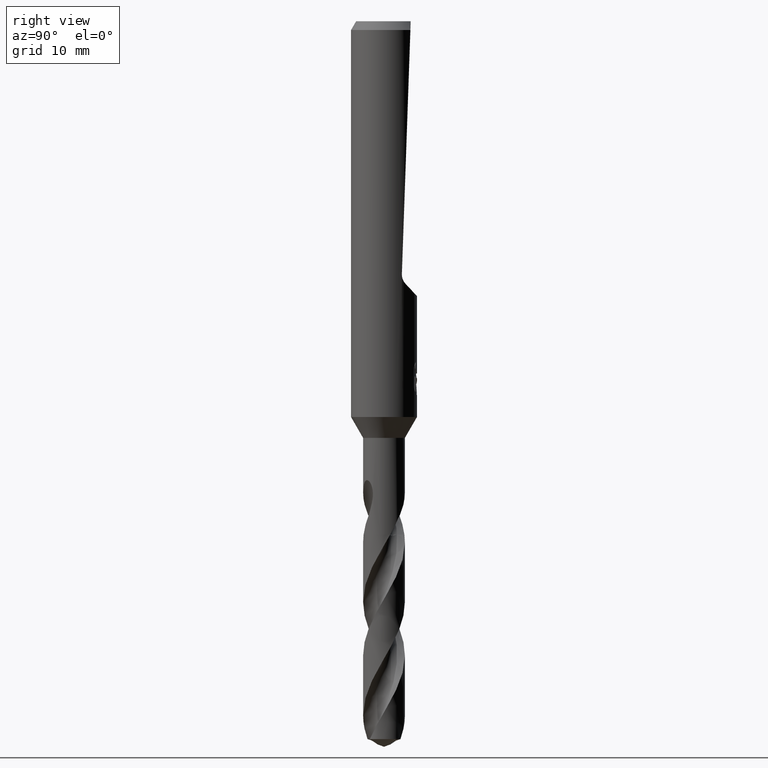
[diagram: clean part render]
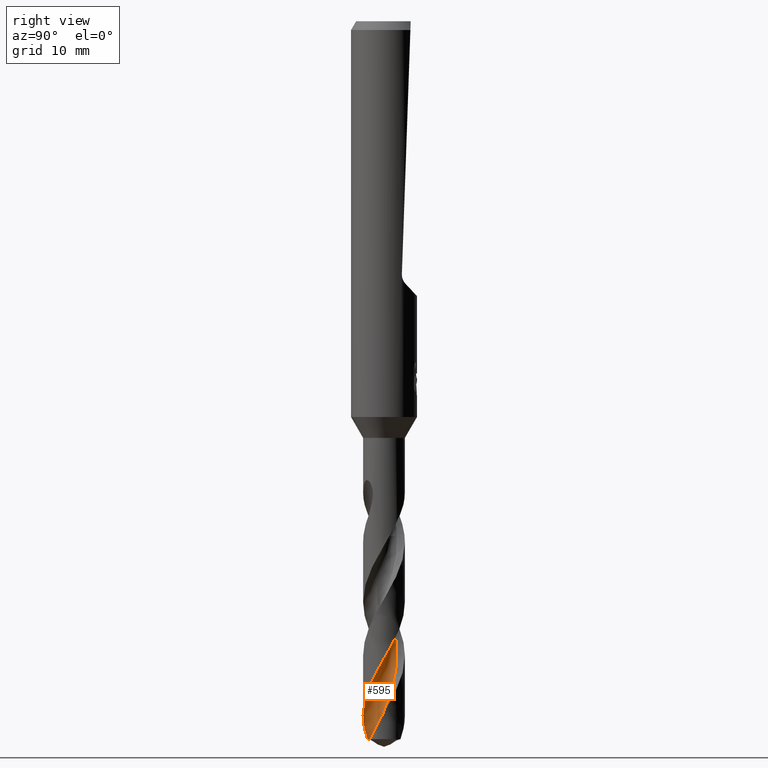
[diagram: same view with one face highlighted and labeled with its STEP entity id]
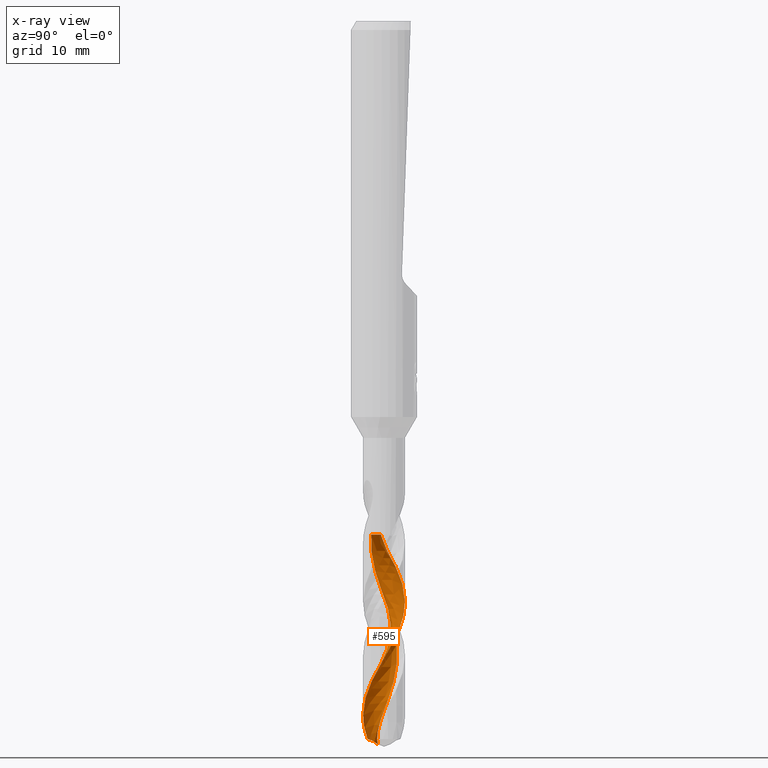
[diagram: x-ray of the same camera — body ghosted, the highlighted face saturated]
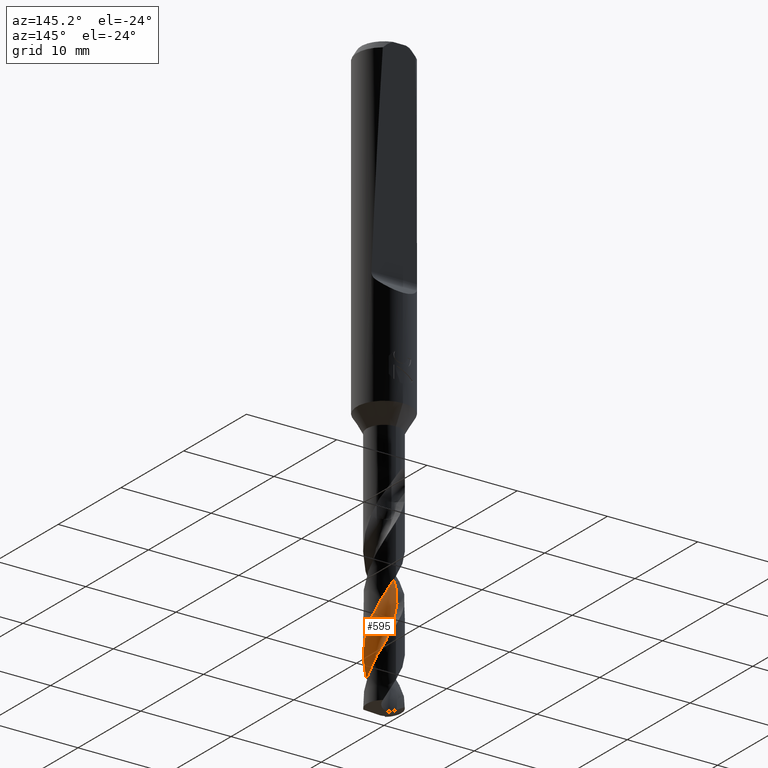
[diagram: same view with one face highlighted and labeled with its STEP entity id]
A machine part, right view. The second image highlights one B-rep face of the part: STEP entity #595.
The next image is the same camera in x-ray: the body ghosted, the highlighted face saturated — about 0% of this face is hidden behind the body in this view.
A second angle (auxiliary view) of the same face is appended — the face is thin or edge-on in the first view.
In plain terms, the highlighted face is a freeform B-spline surface patch.
Its self-contained STEP definition (entity closure, byte-faithful):
#343=EDGE_CURVE('',#709,#485,#917,.T.);
#485=VERTEX_POINT('',#1073);
#563=EDGE_CURVE('',#485,#745,#1157,.T.);
#589=EDGE_CURVE('',#809,#781,#1185,.T.);
#595=ADVANCED_FACE('',(#1192),#1193,.F.);
#623=EDGE_CURVE('',#653,#831,#1222,.T.);
#653=VERTEX_POINT('',#1256);
#709=VERTEX_POINT('',#1316);
#725=EDGE_CURVE('',#831,#709,#1334,.T.);
#745=VERTEX_POINT('',#1355);
#781=VERTEX_POINT('',#1396);
#799=EDGE_CURVE('',#781,#653,#1415,.T.);
#807=EDGE_CURVE('',#745,#809,#1424,.T.);
#809=VERTEX_POINT('',#1426);
#831=VERTEX_POINT('',#1449);
#917=B_SPLINE_CURVE_WITH_KNOTS('',3,(#1841,#1842,#1843,#1844,#1845,#1846,#1847,#1848,#1849,#1850,#1851,#1852,#1853,#1854,#1855,#1856,#1857,#1858,#1859,#1860),.UNSPECIFIED.,.F.,.F.,(4,2,2,2,2,2,2,2,2,4),(-3.9901271750462,-3.7261246741145,-3.46206411517598,-2.96697920148485,-2.47196042875438,-1.97724558250136,-1.48289474108405,-0.988753075961483,-0.49453785556832,-0.0),.UNSPECIFIED.);
#1073=CARTESIAN_POINT('',(0.201795252194495,-1.17621022576391,-46.7050000000001));
#1157=B_SPLINE_CURVE_WITH_KNOTS('',3,(#4142,#4143,#4144,#4145,#4146,#4147,#4148,#4149,#4150,#4151,#4152,#4153,#4154,#4155,#4156,#4157,#4158,#4159,#4160,#4161,#4162,#4163,#4164,#4165,#4166,#4167,#4168,#4169,#4170,#4171,#4172,#4173,#4174,#4175,#4176,#4177,#4178,#4179,#4180,#4181,#4182,#4183,#4184,#4185,#4186,#4187,#4188,#4189,#4190,#4191,#4192,#4193,#4194),.UNSPECIFIED.,.F.,.F.,(4,1,2,2,2,2,1,2,1,2,1,2,1,2,1,2,1,2,1,2,1,2,1,2,1,2,1,2,1,2,1,2,1,4),(0.0,0.424788065878822,0.849576131757644,1.69915226351529,2.54872839527293,3.39830452703058,4.24788065878822,5.09745679054586,5.94703292230351,6.79660905406115,7.6461851858188,8.49576131757644,9.34533744933409,10.1949135810917,11.0444897128494,11.894065844607,12.7436419763647,13.5932181081223,14.44279423988,15.2923703716376,16.1419465033952,16.9915226351529,17.8410987669105,18.6906748986682,19.5402510304258,20.3898271621835,21.2394032939411,22.0889794256987,22.9385555574564,23.788131689214,24.6377078209717,25.4872839527293,26.336860084487,27.1864362162446),.UNSPECIFIED.);
#1185=B_SPLINE_CURVE_WITH_KNOTS('',3,(#4313,#4314,#4315,#4316,#4317,#4318,#4319,#4320,#4321,#4322,#4323,#4324,#4325,#4326,#4327,#4328,#4329,#4330,#4331,#4332,#4333,#4334),.UNSPECIFIED.,.F.,.F.,(4,2,2,2,2,2,2,2,2,2,4),(0.0,0.599433697608991,1.40935372044847,2.82374587029831,4.99462842227336,6.50386250726366,8.05603157308692,10.8520091272242,13.9806121042632,15.9167350515514,17.8524527338052),.UNSPECIFIED.);
#1192=FACE_OUTER_BOUND('',#4368,.T.);
#1193=B_SPLINE_SURFACE_WITH_KNOTS('',3,3,((#4369,#4370,#4371,#4372,#4373,#4374,#4375,#4376,#4377,#4378,#4379,#4380,#4381,#4382,#4383,#4384,#4385,#4386,#4387,#4388,#4389,#4390,#4391,#4392,#4393,#4394,#4395,#4396,#4397,#4398,#4399,#4400,#4401,#4402,#4403,#4404,#4405,#4406,#4407,#4408,#4409,#4410,#4411,#4412,#4413,#4414,#4415,#4416,#4417,#4418,#4419,#4420,#4421),(#4422,#4423,#4424,#4425,#4426,#4427,#4428,#4429,#4430,#4431,#4432,#4433,#4434,#4435,#4436,#4437,#4438,#4439,#4440,#4441,#4442,#4443,#4444,#4445,#4446,#4447,#4448,#4449,#4450,#4451,#4452,#4453,#4454,#4455,#4456,#4457,#4458,#4459,#4460,#4461,#4462,#4463,#4464,#4465,#4466,#4467,#4468,#4469,#4470,#4471,#4472,#4473,#4474),(#4475,#4476,#4477,#4478,#4479,#4480,#4481,#4482,#4483,#4484,#4485,#4486,#4487,#4488,#4489,#4490,#4491,#4492,#4493,#4494,#4495,#4496,#4497,#4498,#4499,#4500,#4501,#4502,#4503,#4504,#4505,#4506,#4507,#4508,#4509,#4510,#4511,#4512,#4513,#4514,#4515,#4516,#4517,#4518,#4519,#4520,#4521,#4522,#4523,#4524,#4525,#4526,#4527),(#4528,#4529,#4530,#4531,#4532,#4533,#4534,#4535,#4536,#4537,#4538,#4539,#4540,#4541,#4542,#4543,#4544,#4545,#4546,#4547,#4548,#4549,#4550,#4551,#4552,#4553,#4554,#4555,#4556,#4557,#4558,#4559,#4560,#4561,#4562,#4563,#4564,#4565,#4566,#4567,#4568,#4569,#4570,#4571,#4572,#4573,#4574,#4575,#4576,#4577,#4578,#4579,#4580),(#4581,#4582,#4583,#4584,#4585,#4586,#4587,#4588,#4589,#4590,#4591,#4592,#4593,#4594,#4595,#4596,#4597,#4598,#4599,#4600,#4601,#4602,#4603,#4604,#4605,#4606,#4607,#4608,#4609,#4610,#4611,#4612,#4613,#4614,#4615,#4616,#4617,#4618,#4619,#4620,#4621,#4622,#4623,#4624,#4625,#4626,#4627,#4628,#4629,#4630,#4631,#4632,#4633),(#4634,#4635,#4636,#4637,#4638,#4639,#4640,#4641,#4642,#4643,#4644,#4645,#4646,#4647,#4648,#4649,#4650,#4651,#4652,#4653,#4654,#4655,#4656,#4657,#4658,#4659,#4660,#4661,#4662,#4663,#4664,#4665,#4666,#4667,#4668,#4669,#4670,#4671,#4672,#4673,#4674,#4675,#4676,#4677,#4678,#4679,#4680,#4681,#4682,#4683,#4684,#4685,#4686),(#4687,#4688,#4689,#4690,#4691,#4692,#4693,#4694,#4695,#4696,#4697,#4698,#4699,#4700,#4701,#4702,#4703,#4704,#4705,#4706,#4707,#4708,#4709,#4710,#4711,#4712,#4713,#4714,#4715,#4716,#4717,#4718,#4719,#4720,#4721,#4722,#4723,#4724,#4725,#4726,#4727,#4728,#4729,#4730,#4731,#4732,#4733,#4734,#4735,#4736,#4737,#4738,#4739),(#4740,#4741,#4742,#4743,#4744,#4745,#4746,#4747,#4748,#4749,#4750,#4751,#4752,#4753,#4754,#4755,#4756,#4757,#4758,#4759,#4760,#4761,#4762,#4763,#4764,#4765,#4766,#4767,#4768,#4769,#4770,#4771,#4772,#4773,#4774,#4775,#4776,#4777,#4778,#4779,#4780,#4781,#4782,#4783,#4784,#4785,#4786,#4787,#4788,#4789,#4790,#4791,#4792),(#4793,#4794,#4795,#4796,#4797,#4798,#4799,#4800,#4801,#4802,#4803,#4804,#4805,#4806,#4807,#4808,#4809,#4810,#4811,#4812,#4813,#4814,#4815,#4816,#4817,#4818,#4819,#4820,#4821,#4822,#4823,#4824,#4825,#4826,#4827,#4828,#4829,#4830,#4831,#4832,#4833,#4834,#4835,#4836,#4837,#4838,#4839,#4840,#4841,#4842,#4843,#4844,#4845),(#4846,#4847,#4848,#4849,#4850,#4851,#4852,#4853,#4854,#4855,#4856,#4857,#4858,#4859,#4860,#4861,#4862,#4863,#4864,#4865,#4866,#4867,#4868,#4869,#4870,#4871,#4872,#4873,#4874,#4875,#4876,#4877,#4878,#4879,#4880,#4881,#4882,#4883,#4884,#4885,#4886,#4887,#4888,#4889,#4890,#4891,#4892,#4893,#4894,#4895,#4896,#4897,#4898),(#4899,#4900,#4901,#4902,#4903,#4904,#4905,#4906,#4907,#4908,#4909,#4910,#4911,#4912,#4913,#4914,#4915,#4916,#4917,#4918,#4919,#4920,#4921,#4922,#4923,#4924,#4925,#4926,#4927,#4928,#4929,#4930,#4931,#4932,#4933,#4934,#4935,#4936,#4937,#4938,#4939,#4940,#4941,#4942,#4943,#4944,#4945,#4946,#4947,#4948,#4949,#4950,#4951)),.UNSPECIFIED.,.F.,.F.,.F.,(4,1,1,1,1,1,1,1,4),(4,1,2,2,2,2,1,2,1,2,1,2,1,2,1,2,1,2,1,2,1,2,1,2,1,2,1,2,1,2,1,2,1,4),(9.52172959878501E-018,0.392702223103158,0.785404446206316,1.17810666930947,1.57080889241263,1.96351111551579,2.35621333861895,2.7489155617221,3.14161778482526),(0.0,0.424788065878822,0.849576131757644,1.69915226351529,2.54872839527293,3.39830452703058,4.24788065878822,5.09745679054586,5.94703292230351,6.79660905406115,7.6461851858188,8.49576131757644,9.34533744933409,10.1949135810917,11.0444897128494,11.894065844607,12.7436419763647,13.5932181081223,14.44279423988,15.2923703716376,16.1419465033952,16.9915226351529,17.8410987669105,18.6906748986682,19.5402510304258,20.3898271621835,21.2394032939411,22.0889794256987,22.9385555574564,23.788131689214,24.6377078209717,25.4872839527293,26.336860084487,27.1864362162446),.UNSPECIFIED.);
#1222=B_SPLINE_CURVE_WITH_KNOTS('',3,(#5032,#5033,#5034,#5035,#5036,#5037,#5038,#5039,#5040,#5041,#5042,#5043,#5044,#5045,#5046,#5047,#5048,#5049,#5050,#5051,#5052,#5053,#5054,#5055,#5056,#5057,#5058,#5059,#5060,#5061,#5062,#5063,#5064,#5065,#5066,#5067,#5068,#5069,#5070,#5071,#5072,#5073,#5074,#5075,#5076,#5077,#5078,#5079,#5080,#5081,#5082,#5083,#5084,#5085,#5086,#5087,#5088,#5089,#5090,#5091,#5092,#5093,#5094,#5095,#5096,#5097,#5098,#5099,#5100,#5101),.UNSPECIFIED.,.F.,.F.,(4,2,2,2,2,2,2,2,2,2,2,2,2,2,2,2,2,2,2,2,2,2,2,2,2,2,2,2,2,2,2,2,2,2,4),(0.0,1.14129969597498,1.71329585622098,2.09578422939338,2.47548582087804,3.23989044272033,3.62211457708237,4.00145131337671,4.76553095865235,5.13207277578285,5.49511289345216,6.18682460648273,6.55375001237513,7.28007276333327,8.01316604120345,8.77403255138447,9.50724667748904,10.2364387491773,10.9700634315829,12.1122844131293,12.5554950359402,13.1271546138345,14.4351768666411,14.6170242253338,15.3411547429064,15.7086700189865,16.4371672832355,17.5503339967734,17.5767966856616,18.3483379130212,18.7506709106609,19.4510265297123,20.5110477781677,21.0400359159826,21.568076041228),.UNSPECIFIED.);
#1256=CARTESIAN_POINT('',(-2.16877347012218E-016,-1.89998832601995,-63.1361090506775));
#1316=CARTESIAN_POINT('',(-1.8165521907024,-0.556559301070723,-46.705));
#1334=B_SPLINE_CURVE_WITH_KNOTS('',3,(#7089,#7090,#7091,#7092,#7093,#7094,#7095,#7096,#7097,#7098,#7099,#7100,#7101,#7102,#7103,#7104,#7105,#7106,#7107,#7108,#7109,#7110,#7111,#7112,#7113,#7114,#7115,#7116,#7117,#7118,#7119,#7120,#7121,#7122,#7123,#7124,#7125,#7126,#7127,#7128,#7129,#7130,#7131,#7132,#7133,#7134,#7135,#7136,#7137,#7138,#7139,#7140,#7141,#7142,#7143,#7144,#7145,#7146,#7147,#7148,#7149,#7150,#7151,#7152,#7153,#7154,#7155,#7156,#7157,#7158),.UNSPECIFIED.,.F.,.F.,(4,2,2,2,2,2,2,2,2,2,2,2,2,2,2,2,2,2,2,2,2,2,2,2,2,2,2,2,2,2,2,2,2,2,4),(0.0,1.14129969597498,1.71329585622098,2.09578422939338,2.47548582087804,3.23989044272033,3.62211457708237,4.00145131337671,4.76553095865235,5.13207277578285,5.49511289345216,6.18682460648273,6.55375001237513,7.28007276333327,8.01316604120345,8.77403255138447,9.50724667748904,10.2364387491773,10.9700634315829,12.1122844131293,12.5554950359402,13.1271546138345,14.4351768666411,14.6170242253338,15.3411547429064,15.7086700189865,16.4371672832355,17.5503339967734,17.5767966856616,18.3483379130212,18.7506709106609,19.4510265297123,20.5110477781677,21.0400359159826,21.568076041228),.UNSPECIFIED.);
#1355=CARTESIAN_POINT('',(0.773120791724195,-0.911187142032901,-65.5650627632593));
#1396=CARTESIAN_POINT('',(-1.16765856255087,-1.49885739191613,-65.3084565548942));
#1415=B_SPLINE_CURVE_WITH_KNOTS('',3,(#7898,#7899,#7900,#7901,#7902,#7903,#7904,#7905,#7906,#7907,#7908,#7909,#7910,#7911,#7912,#7913,#7914,#7915,#7916,#7917,#7918,#7919,#7920,#7921,#7922,#7923,#7924,#7925,#7926,#7927,#7928,#7929,#7930,#7931,#7932,#7933,#7934,#7935,#7936,#7937,#7938,#7939,#7940,#7941,#7942,#7943,#7944,#7945,#7946,#7947,#7948,#7949,#7950,#7951,#7952,#7953,#7954,#7955,#7956,#7957,#7958,#7959,#7960,#7961,#7962,#7963,#7964,#7965,#7966,#7967),.UNSPECIFIED.,.F.,.F.,(4,2,2,2,2,2,2,2,2,2,2,2,2,2,2,2,2,2,2,2,2,2,2,2,2,2,2,2,2,2,2,2,2,2,4),(0.0,1.14129969597498,1.71329585622098,2.09578422939338,2.47548582087804,3.23989044272033,3.62211457708237,4.00145131337671,4.76553095865235,5.13207277578285,5.49511289345216,6.18682460648273,6.55375001237513,7.28007276333327,8.01316604120345,8.77403255138447,9.50724667748904,10.2364387491773,10.9700634315829,12.1122844131293,12.5554950359402,13.1271546138345,14.4351768666411,14.6170242253338,15.3411547429064,15.7086700189865,16.4371672832355,17.5503339967734,17.5767966856616,18.3483379130212,18.7506709106609,19.4510265297123,20.5110477781677,21.0400359159826,21.568076041228),.UNSPECIFIED.);
#1424=B_SPLINE_CURVE_WITH_KNOTS('',3,(#7987,#7988,#7989,#7990,#7991,#7992,#7993,#7994,#7995,#7996,#7997,#7998,#7999,#8000,#8001,#8002,#8003,#8004,#8005,#8006,#8007,#8008),.UNSPECIFIED.,.F.,.F.,(4,2,2,2,2,2,2,2,2,2,4),(0.0,0.599433697608991,1.40935372044847,2.82374587029831,4.99462842227336,6.50386250726366,8.05603157308692,10.8520091272242,13.9806121042632,15.9167350515514,17.8524527338052),.UNSPECIFIED.);
#1426=CARTESIAN_POINT('',(4.11073738220971E-010,-0.577587721321877,-65.7897752617612));
#1449=CARTESIAN_POINT('',(2.3260098267876E-015,1.8999329635738,-52.834012309565));
#1841=CARTESIAN_POINT('',(-2.22705123680449,-1.89352014944292,-46.705));
#1842=CARTESIAN_POINT('',(-2.25194537291521,-1.80911306354783,-46.705));
#1843=CARTESIAN_POINT('',(-2.26797110896852,-1.72233998025824,-46.705));
#1844=CARTESIAN_POINT('',(-2.28177517435269,-1.54685930312431,-46.705));
#1845=CARTESIAN_POINT('',(-2.27951201587119,-1.45862791404729,-46.705));
#1846=CARTESIAN_POINT('',(-2.24677026355738,-1.2077036174765,-46.705));
#1847=CARTESIAN_POINT('',(-2.19365083757415,-1.04979214630107,-46.705));
#1848=CARTESIAN_POINT('',(-2.02989814231921,-0.763241009662709,-46.705));
#1849=CARTESIAN_POINT('',(-1.92083138201276,-0.637325226151795,-46.7050000000001));
#1850=CARTESIAN_POINT('',(-1.66066395553028,-0.434452639275426,-46.7050000000001));
#1851=CARTESIAN_POINT('',(-1.5120662439321,-0.359397586530441,-46.705));
#1852=CARTESIAN_POINT('',(-1.19458597590483,-0.270506463137836,-46.705));
#1853=CARTESIAN_POINT('',(-1.02874958613545,-0.257474510821323,-46.705));
#1854=CARTESIAN_POINT('',(-0.701480339435853,-0.295709076889477,-46.705));
#1855=CARTESIAN_POINT('',(-0.543181302798448,-0.346582510085895,-46.705));
#1856=CARTESIAN_POINT('',(-0.254964192396852,-0.506166161080862,-46.705));
#1857=CARTESIAN_POINT('',(-0.12781837569855,-0.613352473930139,-46.705));
#1858=CARTESIAN_POINT('',(0.0783046580274471,-0.870523652162783,-46.705));
#1859=CARTESIAN_POINT('',(0.155270710254683,-1.01806581441582,-46.705));
#1860=CARTESIAN_POINT('',(0.201795252194537,-1.1762102257639,-46.705));
#4142=CARTESIAN_POINT('',(0.895668591789272,-0.940998078210728,-44.8778));
#4143=CARTESIAN_POINT('',(0.80731457829419,-0.936337540599956,-44.987710154634));
#4144=CARTESIAN_POINT('',(0.666627417904168,-0.945013183683257,-45.2067987657351));
#4145=CARTESIAN_POINT('',(0.597770234352289,-0.986530465002523,-45.4257296911939));
#4146=CARTESIAN_POINT('',(0.539539306262472,-1.07973919094684,-45.7573799053017));
#4147=CARTESIAN_POINT('',(0.471118519835126,-1.12100163254022,-45.9790019473899));
#4148=CARTESIAN_POINT('',(0.305562491738231,-1.15770607103199,-46.4176570408859));
#4149=CARTESIAN_POINT('',(0.225436400529032,-1.1727492871183,-46.6371996218992));
#4150=CARTESIAN_POINT('',(0.0693232914512722,-1.19800583070808,-47.0780566617616));
#4151=CARTESIAN_POINT('',(-0.0114804651859446,-1.20003551934642,-47.2983181640833));
#4152=CARTESIAN_POINT('',(-0.171135117468663,-1.18904627302789,-47.7382906967604));
#4153=CARTESIAN_POINT('',(-0.330880170691397,-1.15752927233222,-48.1784274314992));
#4154=CARTESIAN_POINT('',(-0.480628427728633,-1.09642488713988,-48.6183923274775));
#4155=CARTESIAN_POINT('',(-0.623327193683561,-1.02642907570149,-49.0586476960222));
#4156=CARTESIAN_POINT('',(-0.758263575981416,-0.936188494769935,-49.4990477621533));
#4157=CARTESIAN_POINT('',(-0.8720715374588,-0.820942175740908,-49.9390591628474));
#4158=CARTESIAN_POINT('',(-0.975714073250794,-0.700123460602106,-50.3791943887685));
#4159=CARTESIAN_POINT('',(-1.06437022949337,-0.564056363229342,-50.8195003297754));
#4160=CARTESIAN_POINT('',(-1.12397586342423,-0.413530597161951,-51.2595023138484));
#4161=CARTESIAN_POINT('',(-1.1720364070351,-0.261818996716282,-51.6996761655327));
#4162=CARTESIAN_POINT('',(-1.2002885782238,-0.101893060169506,-52.1400092515654));
#4163=CARTESIAN_POINT('',(-1.19611751432957,0.0599692460772133,-52.580012325731));
#4164=CARTESIAN_POINT('',(-1.18089019148668,0.218383548496521,-53.0201756763797));
#4165=CARTESIAN_POINT('',(-1.14422993959679,0.376588050571753,-53.4605020900248));
#4166=CARTESIAN_POINT('',(-1.0769746093772,0.523870746868363,-53.9005053154704));
#4167=CARTESIAN_POINT('',(-1.00088426302062,0.663648180049657,-54.3406711004139));
#4168=CARTESIAN_POINT('',(-0.905156867345199,0.794834103424377,-54.7809988554053));
#4169=CARTESIAN_POINT('',(-0.785566374802363,0.903984204934564,-55.221001912701));
#4170=CARTESIAN_POINT('',(-0.66079234495093,1.00276950225687,-55.6611672511875));
#4171=CARTESIAN_POINT('',(-0.521317342452826,1.08595534551248,-56.1014949033332));
#4172=CARTESIAN_POINT('',(-0.368519860904304,1.13951506099177,-56.5414981307974));
#4173=CARTESIAN_POINT('',(-0.215013941849514,1.18150638783625,-56.9816635462203));
#4174=CARTESIAN_POINT('',(-0.0540964457442861,1.20338642023142,-57.4219909691371));
#4175=CARTESIAN_POINT('',(0.107467917033527,1.19279211022436,-57.8619940779591));
#4176=CARTESIAN_POINT('',(0.265151149673627,1.17127795975872,-58.3021597883405));
#4177=CARTESIAN_POINT('',(0.421774407213575,1.12835129993873,-58.7424880732871));
#4178=CARTESIAN_POINT('',(0.566267009772669,1.05528644244419,-59.1824908380063));
#4179=CARTESIAN_POINT('',(0.702908507697012,0.973695843171161,-59.622654528571));
#4180=CARTESIAN_POINT('',(0.830186272396655,0.872839219785332,-60.0629801293914));
#4181=CARTESIAN_POINT('',(0.934503502965731,0.749019242661916,-60.5029866824117));
#4182=CARTESIAN_POINT('',(1.02825612404967,0.620421857722843,-60.9431606570816));
#4183=CARTESIAN_POINT('',(1.1058179654037,0.477721947751717,-61.3834946217463));
#4184=CARTESIAN_POINT('',(1.15324596636198,0.322907617924517,-61.8234819703237));
#4185=CARTESIAN_POINT('',(1.18912517848861,0.167883629157203,-62.2636141526155));
#4186=CARTESIAN_POINT('',(1.20466940401564,0.00629037424233538,-62.7039234429178));
#4187=CARTESIAN_POINT('',(1.18756671993568,-0.154782219633411,-63.143987518178));
#4188=CARTESIAN_POINT('',(1.15946406951426,-0.311608465856393,-63.5842685023343));
#4189=CARTESIAN_POINT('',(1.1101024112223,-0.466479387749094,-64.0246561493657));
#4190=CARTESIAN_POINT('',(1.03232647203718,-0.607932600755651,-64.4645176902288));
#4191=CARTESIAN_POINT('',(0.947252216197223,-0.741423311132229,-64.9044253823381));
#4192=CARTESIAN_POINT('',(0.841486376312518,-0.864571975552883,-65.3446443313232));
#4193=CARTESIAN_POINT('',(0.709236927038261,-0.961825390920864,-65.7844893562537));
#4194=CARTESIAN_POINT('',(0.640187026641116,-1.00427124453404,-66.0043760300052));
#4313=CARTESIAN_POINT('',(0.773120791724184,-0.911187142032904,-65.5650627632593));
#4314=CARTESIAN_POINT('',(0.620149687509194,-0.80120478663062,-65.6316078714424));
#4315=CARTESIAN_POINT('',(0.462250037163131,-0.721952958547317,-65.6902994766216));
#4316=CARTESIAN_POINT('',(0.129167227605054,-0.594506525333951,-65.7845859627897));
#4317=CARTESIAN_POINT('',(-0.00514440677500035,-0.574328190352211,-65.7928795684244));
#4318=CARTESIAN_POINT('',(-0.217654402439762,-0.551072117180956,-65.7900933874727));
#4319=CARTESIAN_POINT('',(-0.32308957579213,-0.563215257309206,-65.7643317392008));
#4320=CARTESIAN_POINT('',(-0.494153267590302,-0.596566361446712,-65.7193553762001));
#4321=CARTESIAN_POINT('',(-0.598077950591117,-0.635585088610536,-65.6824913124481));
#4322=CARTESIAN_POINT('',(-0.76529642148981,-0.740702049493278,-65.6124115101233));
#4323=CARTESIAN_POINT('',(-0.827647631046451,-0.792626136788043,-65.5829021707912));
#4324=CARTESIAN_POINT('',(-0.939768795331885,-0.912301166180156,-65.5232905350869));
#4325=CARTESIAN_POINT('',(-0.988766346101497,-0.980061793221188,-65.4933486314459));
#4326=CARTESIAN_POINT('',(-1.10274333929251,-1.18437294124724,-65.4111745625467));
#4327=CARTESIAN_POINT('',(-1.14813422667919,-1.33068702656405,-65.3609682546538));
#4328=CARTESIAN_POINT('',(-1.18564318249341,-1.65191625899324,-65.2606293644206));
#4329=CARTESIAN_POINT('',(-1.17055558713391,-1.82555982185001,-65.2119538959849));
#4330=CARTESIAN_POINT('',(-1.09521837076099,-2.09613093857047,-65.1396504823889));
#4331=CARTESIAN_POINT('',(-1.0545456257821,-2.19648135712535,-65.1137247949806));
#4332=CARTESIAN_POINT('',(-0.951790733139599,-2.3869244359122,-65.0652235372183));
#4333=CARTESIAN_POINT('',(-0.889891959408448,-2.4766904508821,-65.0427319910501));
#4334=CARTESIAN_POINT('',(-0.818795667963816,-2.55921348349912,-65.0220098809612));
#4368=EDGE_LOOP('',(#9093,#9094,#9095,#9096,#9097,#9098,#9099));
#4369=CARTESIAN_POINT('',(-0.895668591789273,-2.73233526178927,-44.8778));
#4370=CARTESIAN_POINT('',(-0.984838986756541,-2.72685834244284,-44.987691165282));
#4371=CARTESIAN_POINT('',(-1.16519067906786,-2.69708320335315,-45.2088049787417));
#4372=CARTESIAN_POINT('',(-1.34381096928385,-2.61742169603047,-45.4304715278378));
#4373=CARTESIAN_POINT('',(-1.60059593264006,-2.45258288283517,-45.7591289361084));
#4374=CARTESIAN_POINT('',(-1.75919465036157,-2.33276440495817,-45.9773752916788));
#4375=CARTESIAN_POINT('',(-2.05783468711018,-2.08345036326125,-46.4191428849526));
#4376=CARTESIAN_POINT('',(-2.19438594965421,-1.94245647916683,-46.6398600988183));
#4377=CARTESIAN_POINT('',(-2.43294222330574,-1.63002541216685,-47.0792761091264));
#4378=CARTESIAN_POINT('',(-2.53698325988661,-1.4625075369691,-47.2991514269267));
#4379=CARTESIAN_POINT('',(-2.70899242242034,-1.10958100912526,-47.7395241971861));
#4380=CARTESIAN_POINT('',(-2.84659758821399,-0.740929476636175,-48.1797205621744));
#4381=CARTESIAN_POINT('',(-2.90825612913323,-0.351981434387003,-48.6201141060364));
#4382=CARTESIAN_POINT('',(-2.92755544987495,0.0403811373513361,-49.0601811958984));
#4383=CARTESIAN_POINT('',(-2.90914493779532,0.433637109343325,-49.5000847145061));
#4384=CARTESIAN_POINT('',(-2.81339240641152,0.81574626624289,-49.9404211221129));
#4385=CARTESIAN_POINT('',(-2.67753816409949,1.18435243258362,-50.3806196813051));
#4386=CARTESIAN_POINT('',(-2.50658537008437,1.53896766837875,-50.8206279994004));
#4387=CARTESIAN_POINT('',(-2.268764964405,1.85295203425739,-51.2609763149881));
#4388=CARTESIAN_POINT('',(-1.99933333876318,2.1388151836814,-51.7011324576228));
#4389=CARTESIAN_POINT('',(-1.70309976408753,2.39807908320695,-52.1411105431666));
#4390=CARTESIAN_POINT('',(-1.36126209673755,2.5937835448541,-52.581457269687));
#4391=CARTESIAN_POINT('',(-1.00135416026771,2.75121466378555,-53.021624949902));
#4392=CARTESIAN_POINT('',(-0.627213011661062,2.87366270669163,-53.4616104702958));
#4393=CARTESIAN_POINT('',(-0.236027712226571,2.91976185733791,-53.9019571256723));
#4394=CARTESIAN_POINT('',(0.156784140230422,2.92357490286223,-54.3421221269945));
#4395=CARTESIAN_POINT('',(0.548984767197397,2.88962700563944,-54.7821061328716));
#4396=CARTESIAN_POINT('',(0.926951640880401,2.77875584231983,-55.2224529555973));
#4397=CARTESIAN_POINT('',(1.28984483101163,2.62834025681948,-55.6626184872953));
#4398=CARTESIAN_POINT('',(1.63737847370477,2.44342294132989,-56.1026026916599));
#4399=CARTESIAN_POINT('',(1.94167428755007,2.19331256189878,-56.5429493084959));
#4400=CARTESIAN_POINT('',(2.21660706571414,1.91272761104783,-56.9831145870892));
#4401=CARTESIAN_POINT('',(2.46388927832631,1.60641812635302,-57.4230987290681));
#4402=CARTESIAN_POINT('',(2.64584444785077,1.25707027873634,-57.8634455621268));
#4403=CARTESIAN_POINT('',(2.78884227921854,0.891190112178138,-58.3036111484359));
#4404=CARTESIAN_POINT('',(2.89632168211815,0.512478958954058,-58.7435955179951));
#4405=CARTESIAN_POINT('',(2.92683843953707,0.119772094038474,-59.1839424186565));
#4406=CARTESIAN_POINT('',(2.91503770310739,-0.272878669135942,-59.6241078830363));
#4407=CARTESIAN_POINT('',(2.8655255436838,-0.663418832448792,-60.0640908120676));
#4408=CARTESIAN_POINT('',(2.73970831157888,-1.03668102743256,-60.5044346906653));
#4409=CARTESIAN_POINT('',(2.57497536261791,-1.39331310668964,-60.94459758957));
#4410=CARTESIAN_POINT('',(2.37639018281905,-1.73323093496852,-61.384587809377));
#4411=CARTESIAN_POINT('',(2.11439171946044,-2.0273450540544,-61.8249489929187));
#4412=CARTESIAN_POINT('',(1.82310847031847,-2.29088290229696,-62.2651259228673));
#4413=CARTESIAN_POINT('',(1.50721511471764,-2.52573767997749,-62.7050825494024));
#4414=CARTESIAN_POINT('',(1.15094008712686,-2.69369582777347,-63.1453784121625));
#4415=CARTESIAN_POINT('',(0.779691762215991,-2.82222119042199,-63.585519607362));
#4416=CARTESIAN_POINT('',(0.396905213553867,-2.91479183115932,-64.0256292734357));
#4417=CARTESIAN_POINT('',(0.00307047584753559,-2.92925088792546,-64.4661386706656));
#4418=CARTESIAN_POINT('',(-0.388858640261921,-2.90074543922177,-64.9063206077738));
#4419=CARTESIAN_POINT('',(-0.776515984284654,-2.83513949109397,-65.3458789819));
#4420=CARTESIAN_POINT('',(-1.1439910579671,-2.69714350062181,-65.7856931505373));
#4421=CARTESIAN_POINT('',(-1.31914420071395,-2.61013462807,-66.0056971931065));
#4422=CARTESIAN_POINT('',(-1.01290788510935,-2.61508719057958,-44.8777999999999));
#4423=CARTESIAN_POINT('',(-1.10202484556797,-2.60955684084011,-44.9876897726651));
#4424=CARTESIAN_POINT('',(-1.27985986344184,-2.57718574085649,-45.2089521150285));
#4425=CARTESIAN_POINT('',(-1.45054811992909,-2.49034015306497,-45.4308192950536));
#4426=CARTESIAN_POINT('',(-1.69044382263655,-2.31250691880285,-45.7592572110604));
#4427=CARTESIAN_POINT('',(-1.83849950227194,-2.18678661298797,-45.9772559925734));
#4428=CARTESIAN_POINT('',(-2.11841920912231,-1.92876287396549,-46.4192518568961));
#4429=CARTESIAN_POINT('',(-2.24475745259657,-1.78407629299974,-46.6400552188216));
#4430=CARTESIAN_POINT('',(-2.46121190569858,-1.46625015231462,-47.0793655437596));
#4431=CARTESIAN_POINT('',(-2.55415594226889,-1.29721180021063,-47.2992125391625));
#4432=CARTESIAN_POINT('',(-2.70378513210653,-0.943477508076202,-47.7396146618963));
#4433=CARTESIAN_POINT('',(-2.81932476540772,-0.576275870820315,-48.1798154009047));
#4434=CARTESIAN_POINT('',(-2.85952600390493,-0.193094161531766,-48.620240381846));
#4435=CARTESIAN_POINT('',(-2.85772662120449,0.191191080909556,-49.0602936630397));
#4436=CARTESIAN_POINT('',(-2.81948405398357,0.574409716322789,-49.5001607626565));
#4437=CARTESIAN_POINT('',(-2.70626574622028,0.942802386135485,-49.9405210130858));
#4438=CARTESIAN_POINT('',(-2.554194316148,1.29573278534558,-50.3807242080924));
#4439=CARTESIAN_POINT('',(-2.36893811689351,1.63335599909037,-50.820710703984));
#4440=CARTESIAN_POINT('',(-2.12042000945427,1.92787329198085,-51.2610844211259));
#4441=CARTESIAN_POINT('',(-1.84220890233724,2.19295613246687,-51.7012392599378));
#4442=CARTESIAN_POINT('',(-1.5394744258905,2.43098210203749,-52.1411913130691));
#4443=CARTESIAN_POINT('',(-1.19542261130705,2.60458605064632,-52.581563242972));
#4444=CARTESIAN_POINT('',(-0.835579875852346,2.73945769736429,-53.0217312392653));
#4445=CARTESIAN_POINT('',(-0.463779828361507,2.83981760702796,-53.4616917574581));
#4446=CARTESIAN_POINT('',(-0.0792178385342005,2.86471564524041,-53.9020636059933));
#4447=CARTESIAN_POINT('',(0.304694310770757,2.84779948937393,-54.3422285414659));
#4448=CARTESIAN_POINT('',(0.686086152854522,2.79444773851626,-54.7821873427279));
#4449=CARTESIAN_POINT('',(1.04965189771913,2.66666626973569,-55.2225593759555));
#4450=CARTESIAN_POINT('',(1.39623420758457,2.50066631475049,-55.6627249208234));
#4451=CARTESIAN_POINT('',(1.72621991046285,2.3021321585283,-56.1026839398953));
#4452=CARTESIAN_POINT('',(2.0106400069289,2.04210690009329,-56.5430557332208));
#4453=CARTESIAN_POINT('',(2.26445974618547,1.75357531089084,-56.9832210118141));
#4454=CARTESIAN_POINT('',(2.49026165001501,1.44161403990638,-57.4231799722332));
#4455=CARTESIAN_POINT('',(2.65004519662865,1.09093244232933,-57.863552009795));
#4456=CARTESIAN_POINT('',(2.77050418318079,0.726014292829413,-58.3037175961042));
#4457=CARTESIAN_POINT('',(2.85600651442868,0.350520444111619,-58.7436767331062));
#4458=CARTESIAN_POINT('',(2.8656028397864,-0.0347258594753585,-59.1840488837334));
#4459=CARTESIAN_POINT('',(2.83344347078137,-0.417660253982871,-59.6242144666425));
#4460=CARTESIAN_POINT('',(2.76497187227864,-0.796628754296589,-60.0641722716493));
#4461=CARTESIAN_POINT('',(2.62282910671808,-1.15482792722657,-60.5045408900792));
#4462=CARTESIAN_POINT('',(2.44317184195631,-1.49454146908762,-60.9447029724484));
#4463=CARTESIAN_POINT('',(2.23167937145906,-1.81638490866797,-61.3846679877654));
#4464=CARTESIAN_POINT('',(1.96056443952599,-2.09024658209233,-61.8250565793896));
#4465=CARTESIAN_POINT('',(1.66217972714644,-2.33237125208802,-62.2652368018198));
#4466=CARTESIAN_POINT('',(1.34149219974233,-2.54553316754369,-62.7051675573899));
#4467=CARTESIAN_POINT('',(0.98476734828153,-2.69129232439744,-63.145480417702));
#4468=CARTESIAN_POINT('',(0.615372172002445,-2.79735875734619,-63.5856113666984));
#4469=CARTESIAN_POINT('',(0.236664012132659,-2.8681067885418,-64.0257006371432));
#4470=CARTESIAN_POINT('',(-0.148858106116657,-2.86187994838269,-64.4662575617284));
#4471=CARTESIAN_POINT('',(-0.530183736344024,-2.81329111528138,-64.906459596145));
#4472=CARTESIAN_POINT('',(-0.90548636084717,-2.72923578386165,-65.3459695380953));
#4473=CARTESIAN_POINT('',(-1.25756369807199,-2.57584476690133,-65.7857814318461));
#4474=CARTESIAN_POINT('',(-1.42424371077286,-2.48189171131655,-66.0057940875474));
#4475=CARTESIAN_POINT('',(-1.20071166538856,-2.33401850105013,-44.8778));
#4476=CARTESIAN_POINT('',(-1.28970053200335,-2.32840256176174,-44.9876874820038));
#4477=CARTESIAN_POINT('',(-1.46147093727696,-2.29184144279674,-45.2091941067448));
#4478=CARTESIAN_POINT('',(-1.61344174845504,-2.19378478391921,-45.4313912616241));
#4479=CARTESIAN_POINT('',(-1.81439846727031,-1.99668465670528,-45.7594681804151));
#4480=CARTESIAN_POINT('',(-1.93902558062593,-1.86335576300481,-45.9770597830974));
#4481=CARTESIAN_POINT('',(-2.17804897443185,-1.59536073304632,-46.4194310814995));
#4482=CARTESIAN_POINT('',(-2.28249703958857,-1.44735158468438,-46.6403761291647));
#4483=CARTESIAN_POINT('',(-2.45261171369715,-1.12752675076571,-47.0795126346255));
#4484=CARTESIAN_POINT('',(-2.52276179309119,-0.959860970914562,-47.2993130474527));
#4485=CARTESIAN_POINT('',(-2.62731923136901,-0.613411211454937,-47.7397634491165));
#4486=CARTESIAN_POINT('',(-2.69931367458725,-0.257883433932104,-48.1799713795116));
#4487=CARTESIAN_POINT('',(-2.69890239461183,0.105235238902205,-48.6204480647816));
#4488=CARTESIAN_POINT('',(-2.65812656923175,0.464979004256858,-49.0604786357672));
#4489=CARTESIAN_POINT('',(-2.58421973755794,0.820240670618977,-49.5002858447644));
#4490=CARTESIAN_POINT('',(-2.44153179991051,1.15426063152839,-49.9406852868781));
#4491=CARTESIAN_POINT('',(-2.26326650984787,1.46939708686314,-50.3808961360155));
#4492=CARTESIAN_POINT('',(-2.05616666761963,1.76735545169271,-50.8208467230611));
#4493=CARTESIAN_POINT('',(-1.79399901897987,2.01869270192557,-51.2612622131744));
#4494=CARTESIAN_POINT('',(-1.50649624034914,2.23873238068427,-51.7014149234411));
#4495=CARTESIAN_POINT('',(-1.19920828829311,2.4317062560248,-52.1413241519652));
#4496=CARTESIAN_POINT('',(-0.859517691152788,2.56023799219104,-52.5817375305917));
#4497=CARTESIAN_POINT('',(-0.508776442726153,2.65002612693605,-53.0219060556937));
#4498=CARTESIAN_POINT('',(-0.150441289829913,2.70715004242424,-53.4618254520379));
#4499=CARTESIAN_POINT('',(0.212445942925185,2.69228864060471,-53.9022387210286));
#4500=CARTESIAN_POINT('',(0.570319160912695,2.63746190451428,-54.3424035701481));
#4501=CARTESIAN_POINT('',(0.92238174851612,2.54960889891149,-54.7823209020876));
#4502=CARTESIAN_POINT('',(1.25042667109139,2.39374075519321,-55.2227344020369));
#4503=CARTESIAN_POINT('',(1.55819673947969,2.20306488225363,-55.6628999711769));
#4504=CARTESIAN_POINT('',(1.84767900720662,1.98428099081004,-56.1028175587737));
#4505=CARTESIAN_POINT('',(2.08841323921674,1.71233400132168,-56.5432307833802));
#4506=CARTESIAN_POINT('',(2.29685570166482,1.41630840575003,-56.9833960308046));
#4507=CARTESIAN_POINT('',(2.47745850783169,1.10158790484557,-57.4233135919291));
#4508=CARTESIAN_POINT('',(2.59237776522936,0.757056234856112,-57.8637270962354));
#4509=CARTESIAN_POINT('',(2.66815110804719,0.403024617971213,-58.3038926542882));
#4510=CARTESIAN_POINT('',(2.71098796337033,0.0427035412764684,-58.743810320865));
#4511=CARTESIAN_POINT('',(2.68171903776566,-0.319305473151622,-59.1842239689667));
#4512=CARTESIAN_POINT('',(2.61271482396894,-0.674715310499788,-59.6243897782324));
#4513=CARTESIAN_POINT('',(2.51093398850565,-1.02300584755653,-60.0643062431786));
#4514=CARTESIAN_POINT('',(2.34213705033503,-1.34459324123705,-60.504715545152));
#4515=CARTESIAN_POINT('',(2.13936534868365,-1.64454195212159,-60.9448763024486));
#4516=CARTESIAN_POINT('',(1.90925128586633,-1.92511145232968,-61.3847998443982));
#4517=CARTESIAN_POINT('',(1.62796092937582,-2.15485146003745,-61.8252335379866));
#4518=CARTESIAN_POINT('',(1.32389154561321,-2.35133479769208,-62.2654191488613));
#4519=CARTESIAN_POINT('',(1.00224419170948,-2.51921364141759,-62.7053073722261));
#4520=CARTESIAN_POINT('',(0.65344762994945,-2.62040528897518,-63.1456481895851));
#4521=CARTESIAN_POINT('',(0.296689101029411,-2.68230025014176,-63.5857622759734));
#4522=CARTESIAN_POINT('',(-0.0651859092323078,-2.71103408969001,-64.0258180192864));
#4523=CARTESIAN_POINT('',(-0.425860255662056,-2.66674979029989,-64.4664530814585));
#4524=CARTESIAN_POINT('',(-0.777996932086897,-2.58221927202085,-64.9066882054705));
#4525=CARTESIAN_POINT('',(-1.12125863154543,-2.46618599486955,-65.3461184577458));
#4526=CARTESIAN_POINT('',(-1.43642491766079,-2.28813453880806,-65.7859266408958));
#4527=CARTESIAN_POINT('',(-1.5834007864934,-2.18366550862266,-66.0059534478541));
#4528=CARTESIAN_POINT('',(-1.29964640160908,-1.8366667533452,-44.8778));
#4529=CARTESIAN_POINT('',(-1.38840860574829,-1.8310057255469,-44.9876860521336));
#4530=CARTESIAN_POINT('',(-1.54936855696156,-1.79211898427717,-45.2093451730773));
#4531=CARTESIAN_POINT('',(-1.66896301364263,-1.68926878986914,-45.4317483183621));
#4532=CARTESIAN_POINT('',(-1.80489213172247,-1.48781965471496,-45.7595998811393));
#4533=CARTESIAN_POINT('',(-1.89268115141201,-1.35739503896885,-45.9769372968481));
#4534=CARTESIAN_POINT('',(-2.06930094407584,-1.09905717019235,-46.4195429647373));
#4535=CARTESIAN_POINT('',(-2.14150345203177,-0.959009104080224,-46.6405764614296));
#4536=CARTESIAN_POINT('',(-2.24624688688835,-0.663015927592791,-47.0796044577516));
#4537=CARTESIAN_POINT('',(-2.28559400902899,-0.510337420551498,-47.2993757926575));
#4538=CARTESIAN_POINT('',(-2.33186676726304,-0.199857118192646,-47.7398563296376));
#4539=CARTESIAN_POINT('',(-2.35021193012372,0.114494184978567,-48.1800687521092));
#4540=CARTESIAN_POINT('',(-2.3050316945946,0.426493108245361,-48.6205777128992));
#4541=CARTESIAN_POINT('',(-2.22432527521621,0.729849433252934,-49.0605941076759));
#4542=CARTESIAN_POINT('',(-2.11703901074026,1.02589137054158,-49.500363924351));
#4543=CARTESIAN_POINT('',(-1.95323991938751,1.29535593228913,-49.9407878451728));
#4544=CARTESIAN_POINT('',(-1.76036747555126,1.54307584933353,-50.3810034556934));
#4545=CARTESIAN_POINT('',(-1.54576359329703,1.77352195071169,-50.8209316369973));
#4546=CARTESIAN_POINT('',(-1.28946625201684,1.95717901327942,-51.2613732056222));
#4547=CARTESIAN_POINT('',(-1.01494305214131,2.10945798497945,-51.7015245798762));
#4548=CARTESIAN_POINT('',(-0.727206653960411,2.23737873497915,-52.141407077245));
#4549=CARTESIAN_POINT('',(-0.419434267761726,2.30594700842465,-52.5818463373601));
#4550=CARTESIAN_POINT('',(-0.107187432896677,2.33847716905391,-53.0220151813328));
#4551=CARTESIAN_POINT('',(0.207666451934631,2.34340849262931,-53.4619089133063));
#4552=CARTESIAN_POINT('',(0.517689898014986,2.28588565890142,-53.9023480426883));
#4553=CARTESIAN_POINT('',(0.817712189466222,2.193465163478,-54.3425128299225));
#4554=CARTESIAN_POINT('',(1.10932079315046,2.07463233467964,-54.7824042817961));
#4555=CARTESIAN_POINT('',(1.37201300909953,1.90022880004768,-55.2228436608354));
#4556=CARTESIAN_POINT('',(1.61182661102422,1.69763409426739,-55.6630092518128));
#4557=CARTESIAN_POINT('',(1.83354938408179,1.47403661077626,-56.1029009741002));
#4558=CARTESIAN_POINT('',(2.00689425517931,1.21064493307147,-56.5433400529329));
#4559=CARTESIAN_POINT('',(2.14814489520704,0.930282146734608,-56.9835052961367));
#4560=CARTESIAN_POINT('',(2.2645208467287,0.637684300093095,-57.4233970054331));
#4561=CARTESIAN_POINT('',(2.3207916121106,0.327430507017562,-57.8638363888411));
#4562=CARTESIAN_POINT('',(2.34088312347238,0.0141388639749381,-58.3040019436794));
#4563=CARTESIAN_POINT('',(2.33329849552444,-0.300661453330846,-58.7438937090727));
#4564=CARTESIAN_POINT('',(2.2635043964156,-0.60815442789534,-59.1843332719329));
#4565=CARTESIAN_POINT('',(2.15923629939977,-0.904266151809785,-59.6244992147029));
#4566=CARTESIAN_POINT('',(2.0289019206409,-1.19091776984715,-60.0643898764632));
#4567=CARTESIAN_POINT('',(1.84418121995053,-1.4464627917509,-60.5048245796945));
#4568=CARTESIAN_POINT('',(1.63220162264715,-1.67803119154396,-60.9449845017824));
#4569=CARTESIAN_POINT('',(1.39997278614228,-1.89070796810495,-61.3848821625175));
#4570=CARTESIAN_POINT('',(1.12990816315221,-2.05345710125454,-61.8253440004816));
#4571=CARTESIAN_POINT('',(0.844160795491061,-2.18342130891859,-62.2655329872343));
#4572=CARTESIAN_POINT('',(0.54717814493132,-2.28798987006332,-62.7053946504164));
#4573=CARTESIAN_POINT('',(0.234953797609572,-2.33196521827714,-63.1457529229671));
#4574=CARTESIAN_POINT('',(-0.0789343681826488,-2.33989561435278,-63.5858564831351));
#4575=CARTESIAN_POINT('',(-0.393361325460087,-2.32006375821474,-64.0258912933544));
#4576=CARTESIAN_POINT('',(-0.697751356676006,-2.2372983302368,-64.466575143068));
#4577=CARTESIAN_POINT('',(-0.988801667618627,-2.11971107426049,-64.906830911527));
#4578=CARTESIAN_POINT('',(-1.26929966445526,-1.97775176772354,-65.3462114291911));
#4579=CARTESIAN_POINT('',(-1.5191533061476,-1.78671155160724,-65.7860172823339));
#4580=CARTESIAN_POINT('',(-1.63278382581627,-1.67897932047517,-66.006052930446));
#4581=CARTESIAN_POINT('',(-1.20072034316448,-1.33931327950934,-44.8777999999999));
#4582=CARTESIAN_POINT('',(-1.28925588424915,-1.33369733648816,-44.9876868463096));
#4583=CARTESIAN_POINT('',(-1.43933827735637,-1.29679905290813,-45.2092612842389));
#4584=CARTESIAN_POINT('',(-1.52718720280083,-1.20190987272777,-45.4315500407809));
#4585=CARTESIAN_POINT('',(-1.60137370605235,-1.02132822759799,-45.759526746401));
#4586=CARTESIAN_POINT('',(-1.6562402865485,-0.907684264929119,-45.9770053144584));
#4587=CARTESIAN_POINT('',(-1.7789024003162,-0.682149452973995,-46.4194808350953));
#4588=CARTESIAN_POINT('',(-1.82436069067247,-0.561796225626838,-46.6404652139321));
#4589=CARTESIAN_POINT('',(-1.87782896635297,-0.312837411245596,-47.0795534681563));
#4590=CARTESIAN_POINT('',(-1.89445332745063,-0.185793202762614,-47.2993409497947));
#4591=CARTESIAN_POINT('',(-1.9006431589627,0.0691509693532536,-47.7398047518286));
#4592=CARTESIAN_POINT('',(-1.88518058836568,0.324929384769041,-48.1800146801225));
#4593=CARTESIAN_POINT('',(-1.81820211025794,0.57256745605008,-48.6205057179458));
#4594=CARTESIAN_POINT('',(-1.72218336932348,0.808547737008339,-49.0605299847908));
#4595=CARTESIAN_POINT('',(-1.60672114293675,1.03710394845956,-49.5003205646525));
#4596=CARTESIAN_POINT('',(-1.44812237713866,1.23884825641407,-49.9407308959922));
#4597=CARTESIAN_POINT('',(-1.26755407307925,1.41869353685468,-50.3809438573359));
#4598=CARTESIAN_POINT('',(-1.07185340035154,1.58389480043781,-50.820884484272));
#4599=CARTESIAN_POINT('',(-0.846879764893463,1.70727011662807,-51.2613115710298));
#4600=CARTESIAN_POINT('',(-0.610279208988479,1.80191353404343,-51.701463685723));
#4601=CARTESIAN_POINT('',(-0.365501026947602,1.87721520096196,-52.1413610259174));
#4602=CARTESIAN_POINT('',(-0.110164353162293,1.90259920137318,-52.5817859205224));
#4603=CARTESIAN_POINT('',(0.14460648871903,1.89696124215279,-53.0219545779164));
#4604=CARTESIAN_POINT('',(0.399315553550448,1.87031262872719,-53.461862568724));
#4605=CARTESIAN_POINT('',(0.644173375759828,1.79360606807699,-53.9022873351763));
#4606=CARTESIAN_POINT('',(0.876361835914647,1.68859226671752,-54.3424521567689));
#4607=CARTESIAN_POINT('',(1.10026272406912,1.5642727548347,-54.7823579793963));
#4608=CARTESIAN_POINT('',(1.29548378062437,1.39775435118671,-55.2227829896973));
#4609=CARTESIAN_POINT('',(1.4679526974991,1.21015409358433,-55.6629485656083));
#4610=CARTESIAN_POINT('',(1.62523181550594,1.00804007941589,-56.1028546543002));
#4611=CARTESIAN_POINT('',(1.73959113670244,0.778341429386613,-56.5432793725258));
#4612=CARTESIAN_POINT('',(1.82475864749945,0.538162561312299,-56.983444621726));
#4613=CARTESIAN_POINT('',(1.89026280841662,0.290582112797861,-57.4233506833521));
#4614=CARTESIAN_POINT('',(1.90546719097196,0.0344408517222485,-57.8637756989308));
#4615=CARTESIAN_POINT('',(1.88970608518337,-0.219903337432784,-58.3039412526121));
#4616=CARTESIAN_POINT('',(1.85295829871732,-0.473352373686191,-58.7438474041522));
#4617=CARTESIAN_POINT('',(1.76658641192302,-0.714970760268685,-59.1842725733294));
#4618=CARTESIAN_POINT('',(1.65243134370462,-0.942803238695396,-59.6244384448977));
#4619=CARTESIAN_POINT('',(1.51930533393236,-1.1615809107252,-60.0643434321534));
#4620=CARTESIAN_POINT('',(1.34514651247336,-1.35001703823208,-60.5047640338136));
#4621=CARTESIAN_POINT('',(1.15082814171354,-1.51488661117252,-60.9449244153118));
#4622=CARTESIAN_POINT('',(0.942627137333204,-1.6640294451517,-61.3848364492695));
#4623=CARTESIAN_POINT('',(0.708570195059285,-1.76918311796099,-61.8252826638346));
#4624=CARTESIAN_POINT('',(0.465206088257923,-1.84470332580489,-62.265469767148));
#4625=CARTESIAN_POINT('',(0.215238626235292,-1.90021970502307,-62.7053461816915));
#4626=CARTESIAN_POINT('',(-0.0413015707510515,-1.90532984534241,-63.1456947721212));
#4627=CARTESIAN_POINT('',(-0.29493122796562,-1.8798094393446,-63.5858041601131));
#4628=CARTESIAN_POINT('',(-0.546936504601297,-1.83326650130442,-64.025850611842));
#4629=CARTESIAN_POINT('',(-0.784600537737895,-1.73648842977125,-64.4665073529059));
#4630=CARTESIAN_POINT('',(-1.00656414880113,-1.61173767271937,-64.9067516732955));
#4631=CARTESIAN_POINT('',(-1.21915450935798,-1.46984467403676,-65.3461597934505));
#4632=CARTESIAN_POINT('',(-1.40369659054588,-1.29179867896525,-65.7859669554917));
#4633=CARTESIAN_POINT('',(-1.48527129286947,-1.19381244964889,-66.0059976866675));
#4634=CARTESIAN_POINT('',(-0.918994323537022,-0.917676833219005,-44.8778));
#4635=CARTESIAN_POINT('',(-1.00733770853577,-0.912189283231742,-44.9876897432995));
#4636=CARTESIAN_POINT('',(-1.14813147602735,-0.881290809443293,-45.2089552119314));
#4637=CARTESIAN_POINT('',(-1.20969873845364,-0.805905181903047,-45.4308266152763));
#4638=CARTESIAN_POINT('',(-1.23482751569966,-0.668230587142575,-45.7592599105679));
#4639=CARTESIAN_POINT('',(-1.26569953554473,-0.582688910523176,-45.9772534816172));
#4640=CARTESIAN_POINT('',(-1.35106458449488,-0.408109004773013,-46.4192541504813));
#4641=CARTESIAN_POINT('',(-1.37935162913856,-0.316185963818877,-46.6400593258151));
#4642=CARTESIAN_POINT('',(-1.40344712597665,-0.130303548947501,-47.0793674262148));
#4643=CARTESIAN_POINT('',(-1.40888831086568,-0.0356380163237406,-47.2992138237388));
#4644=CARTESIAN_POINT('',(-1.39929932958178,0.152658364935521,-47.7396165677865));
#4645=CARTESIAN_POINT('',(-1.37501757270532,0.341384805857858,-48.1798173959524));
#4646=CARTESIAN_POINT('',(-1.31253020412678,0.521219436629387,-48.6202430403498));
#4647=CARTESIAN_POINT('',(-1.2281486111873,0.689092622150457,-49.0602960297178));
#4648=CARTESIAN_POINT('',(-1.13095863173471,0.852171364420464,-49.5001623666774));
#4649=CARTESIAN_POINT('',(-1.00307995290191,0.993340521282994,-49.9405231095814));
#4650=CARTESIAN_POINT('',(-0.859853862119811,1.1151865279204,-50.380726414282));
#4651=CARTESIAN_POINT('',(-0.70658575809931,1.22734347321507,-50.8207124422601));
#4652=CARTESIAN_POINT('',(-0.533620402693568,1.30701297350611,-51.261086695603));
#4653=CARTESIAN_POINT('',(-0.354112085321944,1.36292062548706,-51.7012415089632));
#4654=CARTESIAN_POINT('',(-0.169158680900252,1.40604815006773,-52.141193012952));
#4655=CARTESIAN_POINT('',(0.0212077700306185,1.41160159071618,-52.5815654729614));
#4656=CARTESIAN_POINT('',(0.208271372743063,1.39269620267395,-53.0217334770871));
#4657=CARTESIAN_POINT('',(0.395328715813009,1.35988814459986,-53.4616934697177));
#4658=CARTESIAN_POINT('',(0.572640111068291,1.29039616005076,-53.9020658440808));
#4659=CARTESIAN_POINT('',(0.737339080304707,1.19970674682827,-54.3422307844938));
#4660=CARTESIAN_POINT('',(0.896586573069754,1.09622900787158,-54.7821890504557));
#4661=CARTESIAN_POINT('',(1.03249005066457,0.962815796142065,-55.222561616011));
#4662=CARTESIAN_POINT('',(1.14847884423875,0.814840463839432,-55.6627271610197));
#4663=CARTESIAN_POINT('',(1.25444126232694,0.657236263668461,-56.1026856465632));
#4664=CARTESIAN_POINT('',(1.32719900570972,0.48123882099156,-56.5430579803467));
#4665=CARTESIAN_POINT('',(1.37593035822274,0.299647242852048,-56.9832232448497));
#4666=CARTESIAN_POINT('',(1.41166268868689,0.113125338230219,-57.4231816842551));
#4667=CARTESIAN_POINT('',(1.40963487659526,-0.0773070041814845,-57.8635542534486));
#4668=CARTESIAN_POINT('',(1.38330869409926,-0.263470623309865,-58.3037198335803));
#4669=CARTESIAN_POINT('',(1.34309596671864,-0.449078174748368,-58.7436784446868));
#4670=CARTESIAN_POINT('',(1.26661753922217,-0.62349239711333,-59.1840511235048));
#4671=CARTESIAN_POINT('',(1.16945763410899,-0.78445955438668,-59.6242167112271));
#4672=CARTESIAN_POINT('',(1.05972691538191,-0.939461611859436,-60.0641739847645));
#4673=CARTESIAN_POINT('',(0.921007637933718,-1.06993920568945,-60.5045431272316));
#4674=CARTESIAN_POINT('',(0.768530812347178,-1.17994588528289,-60.9447051887859));
#4675=CARTESIAN_POINT('',(0.606842169413525,-1.27958617927152,-61.3846696747661));
#4676=CARTESIAN_POINT('',(0.428092921713687,-1.34530833104934,-61.8250588470068));
#4677=CARTESIAN_POINT('',(0.244720756616867,-1.38674840478912,-62.2652391325744));
#4678=CARTESIAN_POINT('',(0.056961215730104,-1.41493857079354,-62.7051693470329));
#4679=CARTESIAN_POINT('',(-0.133260436638928,-1.40545156503698,-63.1454825671423));
#4680=CARTESIAN_POINT('',(-0.318417393815986,-1.37208677975099,-63.585613295722));
#4681=CARTESIAN_POINT('',(-0.50253065027925,-1.32475395896963,-64.0257021459111));
#4682=CARTESIAN_POINT('',(-0.673185587327135,-1.24056506142976,-64.4662600532363));
#4683=CARTESIAN_POINT('',(-0.828580158361551,-1.13563463341033,-64.9064625326145));
#4684=CARTESIAN_POINT('',(-0.97845742916762,-1.01979018577482,-65.3459714334879));
#4685=CARTESIAN_POINT('',(-1.10763229050253,-0.878743110275429,-65.7857833004205));
#4686=CARTESIAN_POINT('',(-1.16332098825811,-0.802028320682249,-66.0057961270261));
#4687=CARTESIAN_POINT('',(-0.497359252726525,-0.635948755031967,-44.8778000000001));
#4688=CARTESIAN_POINT('',(-0.585574243199787,-0.630653360299644,-44.9876943022633));
#4689=CARTESIAN_POINT('',(-0.720082448624676,-0.608852615751722,-45.2084735534287));
#4690=CARTESIAN_POINT('',(-0.764833124928665,-0.561543794218516,-45.4296881787467));
#4691=CARTESIAN_POINT('',(-0.761057776053123,-0.4822834966153,-45.7588399972505));
#4692=CARTESIAN_POINT('',(-0.780516125832001,-0.431887355466009,-45.977644014843));
#4693=CARTESIAN_POINT('',(-0.850922955016933,-0.318656656831917,-46.4188974238014));
#4694=CARTESIAN_POINT('',(-0.874225933616838,-0.259570842389306,-46.6394205894259));
#4695=CARTESIAN_POINT('',(-0.895322840613046,-0.14320390812457,-47.0790746569878));
#4696=CARTESIAN_POINT('',(-0.90282299637978,-0.0827319859782107,-47.2990137726868));
#4697=CARTESIAN_POINT('',(-0.90416154032041,0.0379516215400373,-47.7393204231781));
#4698=CARTESIAN_POINT('',(-0.897391802620084,0.161355220182178,-48.1795069377241));
#4699=CARTESIAN_POINT('',(-0.865001156555003,0.280266445796656,-48.6198296692821));
#4700=CARTESIAN_POINT('',(-0.81743450135485,0.38967033239472,-49.0599278623004));
#4701=CARTESIAN_POINT('',(-0.762183152897457,0.499248374197262,-49.4999134109142));
#4702=CARTESIAN_POINT('',(-0.685867387571978,0.596209642925,-49.9401961264971));
#4703=CARTESIAN_POINT('',(-0.599336488132909,0.678761744470758,-50.3803842243311));
#4704=CARTESIAN_POINT('',(-0.505570229468106,0.758150533418054,-50.8204417087081));
#4705=CARTESIAN_POINT('',(-0.397379818225234,0.817344067210559,-51.2607328105931));
#4706=CARTESIAN_POINT('',(-0.285441418034914,0.859313006399342,-51.7008918790569));
#4707=CARTESIAN_POINT('',(-0.168071429574304,0.89560962823465,-52.1409286115034));
#4708=CARTESIAN_POINT('',(-0.0453184316554272,0.907705290072627,-52.5812185632193));
#4709=CARTESIAN_POINT('',(0.074114667378973,0.902453046348605,-53.0213855331045));
#4710=CARTESIAN_POINT('',(0.196312906906623,0.889843766675608,-53.4614273669471));
#4711=CARTESIAN_POINT('',(0.313980566897533,0.852866292379174,-53.9017172838829));
#4712=CARTESIAN_POINT('',(0.421809211323655,0.801238167116084,-54.3418824216122));
#4713=CARTESIAN_POINT('',(0.52930067694664,0.741757637606105,-54.7819232102456));
#4714=CARTESIAN_POINT('',(0.623070863899776,0.661629632044614,-55.2222132424665));
#4715=CARTESIAN_POINT('',(0.702042816475738,0.571877072984021,-55.6623787454001));
#4716=CARTESIAN_POINT('',(0.777628118361625,0.475032706962132,-56.102419684245));
#4717=CARTESIAN_POINT('',(0.832501814710969,0.364569002068664,-56.5427095757846));
#4718=CARTESIAN_POINT('',(0.869991147532571,0.251048558949129,-56.9828748747615));
#4719=CARTESIAN_POINT('',(0.90158416612774,0.132330590338015,-57.4229157293788));
#4720=CARTESIAN_POINT('',(0.908781837311215,0.00919980300213483,-57.8632057754002));
#4721=CARTESIAN_POINT('',(0.898786579007307,-0.109930161524542,-58.3033713867563));
#4722=CARTESIAN_POINT('',(0.881334645681101,-0.231534443198459,-58.743412566569));
#4723=CARTESIAN_POINT('',(0.839714705817058,-0.347646309805029,-59.1837026202314));
#4724=CARTESIAN_POINT('',(0.783844704188153,-0.453341870248504,-59.6238677876505));
#4725=CARTESIAN_POINT('',(0.720134417805007,-0.558376057443102,-60.0639073280247));
#4726=CARTESIAN_POINT('',(0.63633691229895,-0.648869277694357,-60.5041954820446));
#4727=CARTESIAN_POINT('',(0.543511859204537,-0.724201509378368,-60.9443602074397));
#4728=CARTESIAN_POINT('',(0.443738905924473,-0.795907096112875,-61.384407217887));
#4729=CARTESIAN_POINT('',(0.331177139714322,-0.846364854462017,-61.8247066380285));
#4730=CARTESIAN_POINT('',(0.216272223821062,-0.879277131370709,-62.264876182684));
#4731=CARTESIAN_POINT('',(0.0964425944995786,-0.906027288481434,-62.7048910655624));
#4732=CARTESIAN_POINT('',(-0.0269226744716146,-0.90843351548668,-63.1451486337512));
#4733=CARTESIAN_POINT('',(-0.145817254178793,-0.894025029230673,-63.5853129288744));
#4734=CARTESIAN_POINT('',(-0.266904256734487,-0.871943779567103,-64.0254685165217));
#4735=CARTESIAN_POINT('',(-0.380468691402519,-0.825029252676562,-64.4658708767038));
#4736=CARTESIAN_POINT('',(-0.481946571491566,-0.76388547506886,-64.9060075262969));
#4737=CARTESIAN_POINT('',(-0.583852952505412,-0.696106099347893,-65.345675018165));
#4738=CARTESIAN_POINT('',(-0.67603422282392,-0.610429805972183,-65.7854942756923));
#4739=CARTESIAN_POINT('',(-0.715947701449452,-0.563273457657773,-66.0054789376309));
#4740=CARTESIAN_POINT('',(-6.26188512178882E-006,-0.537020268350667,-44.8778));
#4741=CARTESIAN_POINT('',(-0.0881761670538084,-0.531951537922899,-44.9876998292551));
#4742=CARTESIAN_POINT('',(-0.220358808139154,-0.520961372213415,-45.2078896379564));
#4743=CARTESIAN_POINT('',(-0.260318188987584,-0.506028102121649,-45.4283080505918));
#4744=CARTESIAN_POINT('',(-0.252192773917639,-0.491796164442596,-45.7583309354124));
#4745=CARTESIAN_POINT('',(-0.274555999222442,-0.478238132179086,-45.9781174583893));
#4746=CARTESIAN_POINT('',(-0.354620744346396,-0.42741093320678,-46.4184649639801));
#4747=CARTESIAN_POINT('',(-0.385885625139597,-0.400570139635424,-46.638646248264));
#4748=CARTESIAN_POINT('',(-0.430814649880417,-0.349574491865365,-47.0787197325009));
#4749=CARTESIAN_POINT('',(-0.453302458751013,-0.319905367575838,-47.2987712476454));
#4750=CARTESIAN_POINT('',(-0.49061122026882,-0.257505924126175,-47.73896140948));
#4751=CARTESIAN_POINT('',(-0.525018622406735,-0.187751065366116,-48.1791305670967));
#4752=CARTESIAN_POINT('',(-0.543748281322771,-0.113608030747531,-48.6193285393745));
#4753=CARTESIAN_POINT('',(-0.552569530273925,-0.0441340807614322,-49.0594815319366));
#4754=CARTESIAN_POINT('',(-0.556538313055437,0.0320651507034976,-49.4996116010762));
#4755=CARTESIAN_POINT('',(-0.544778185958863,0.107916153441897,-49.9397997256612));
#4756=CARTESIAN_POINT('',(-0.525663981496372,0.175861951862331,-50.3799693856996));
#4757=CARTESIAN_POINT('',(-0.499410091975507,0.24774747994697,-50.8201134979469));
#4758=CARTESIAN_POINT('',(-0.458899733243667,0.312812230303583,-51.2603037966506));
#4759=CARTESIAN_POINT('',(-0.414721858604659,0.367761579306892,-51.7004680208184));
#4760=CARTESIAN_POINT('',(-0.362404799993985,0.423610500814913,-52.1406080757763));
#4761=CARTESIAN_POINT('',(-0.29961478684592,0.467625157481757,-52.5807980083152));
#4762=CARTESIAN_POINT('',(-0.23743916283627,0.500868025812406,-53.0209637158015));
#4763=CARTESIAN_POINT('',(-0.167433041317492,0.531740623906616,-53.4611047673658));
#4764=CARTESIAN_POINT('',(-0.092426064778577,0.547627469265191,-53.9012947337164));
#4765=CARTESIAN_POINT('',(-0.0221904493464651,0.5538507186704,-54.3414600908962));
#4766=CARTESIAN_POINT('',(0.0543218667783416,0.554824546946806,-54.7816009346996));
#4767=CARTESIAN_POINT('',(0.12955756418803,0.540049446757386,-55.221790912693));
#4768=CARTESIAN_POINT('',(0.196611526180717,0.518253478489211,-55.6619563566339));
#4769=CARTESIAN_POINT('',(0.26738400847743,0.489168688363059,-56.1020972613593));
#4770=CARTESIAN_POINT('',(0.330813916497965,0.446094173617678,-56.5422872011414));
#4771=CARTESIAN_POINT('',(0.383966889870884,0.399765337360948,-56.9824525484514));
#4772=CARTESIAN_POINT('',(0.437683298096997,0.345273996689135,-57.4225933069728));
#4773=CARTESIAN_POINT('',(0.479159613271875,0.280791187680316,-57.8627833215046));
#4774=CARTESIAN_POINT('',(0.509905003736677,0.217342535697304,-58.3029489575905));
#4775=CARTESIAN_POINT('',(0.537974420871481,0.146159236606775,-58.7430902456542));
#4776=CARTESIAN_POINT('',(0.550871026005284,0.0705717722317122,-59.1832801287053));
#4777=CARTESIAN_POINT('',(0.554299552702131,0.000139351736548582,-59.623444787561));
#4778=CARTESIAN_POINT('',(0.552228534194217,-0.0763419850502582,-60.063584057821));
#4779=CARTESIAN_POINT('',(0.53447356451051,-0.150912345716469,-60.5037740344693));
#4780=CARTESIAN_POINT('',(0.510028912058619,-0.217037529574545,-60.9439419828353));
#4781=CARTESIAN_POINT('',(0.478148734135152,-0.286629113826555,-61.3840890377128));
#4782=CARTESIAN_POINT('',(0.432577634848055,-0.348313509999852,-61.8242796643765));
#4783=CARTESIAN_POINT('',(0.384191586001752,-0.399548626024907,-62.2644361681754));
#4784=CARTESIAN_POINT('',(0.327671987489225,-0.450964212499327,-62.7045537072014));
#4785=CARTESIAN_POINT('',(0.261522499468086,-0.489943382296485,-63.1447438102506));
#4786=CARTESIAN_POINT('',(0.196591969598198,-0.518405907040724,-63.5849487892395));
#4787=CARTESIAN_POINT('',(0.124070126938751,-0.543773294338876,-64.0251852828832));
#4788=CARTESIAN_POINT('',(0.0489859522753117,-0.553143565779363,-64.4653990906239));
#4789=CARTESIAN_POINT('',(-0.0194360429235886,-0.553086527813955,-64.9054559082569));
#4790=CARTESIAN_POINT('',(-0.0954169835852534,-0.548071163772454,-65.3453156708127));
#4791=CARTESIAN_POINT('',(-0.174610316671505,-0.527707676994993,-65.7851439090042));
#4792=CARTESIAN_POINT('',(-0.211261035548073,-0.513896698202023,-66.0050944084511));
#4793=CARTESIAN_POINT('',(0.497351831102007,-0.635946714231143,-44.8778));
#4794=CARTESIAN_POINT('',(0.409136841346064,-0.631104648938128,-44.9877054826939));
#4795=CARTESIAN_POINT('',(0.274965843859685,-0.630992202743795,-45.2072923564875));
#4796=CARTESIAN_POINT('',(0.227043385199422,-0.647804663459215,-45.4268963302147));
#4797=CARTESIAN_POINT('',(0.214303186244597,-0.695315856660247,-45.7578102213999));
#4798=CARTESIAN_POINT('',(0.175159084207973,-0.714680674795787,-45.9786017397056));
#4799=CARTESIAN_POINT('',(0.0622910755880817,-0.717811693692333,-46.4180226045313));
#4800=CARTESIAN_POINT('',(0.0113306548944784,-0.717715133597149,-46.6378541820035));
#4801=CARTESIAN_POINT('',(-0.0806326420873505,-0.71799533900051,-47.0783566835571));
#4802=CARTESIAN_POINT('',(-0.128754943442569,-0.711049239095208,-47.2985231712403));
#4803=CARTESIAN_POINT('',(-0.221600343454612,-0.688733084412305,-47.7385941775693));
#4804=CARTESIAN_POINT('',(-0.314581136100026,-0.652786309629931,-48.1787455811147));
#4805=CARTESIAN_POINT('',(-0.397672246337039,-0.600441663964802,-48.6188159385019));
#4806=CARTESIAN_POINT('',(-0.473870083178452,-0.546280275864681,-49.0590249846148));
#4807=CARTESIAN_POINT('',(-0.545325132659962,-0.47825725500292,-49.4993028850687));
#4808=CARTESIAN_POINT('',(-0.60128588403206,-0.397205871990692,-49.9393942462985));
#4809=CARTESIAN_POINT('',(-0.650046923744811,-0.316955873135982,-50.3795450558441));
#4810=CARTESIAN_POINT('',(-0.689038466453186,-0.226167104095328,-50.8197777708572));
#4811=CARTESIAN_POINT('',(-0.70881040087861,-0.129778342965294,-51.2598649644317));
#4812=CARTESIAN_POINT('',(-0.722268617126926,-0.036906081002554,-51.700034458111));
#4813=CARTESIAN_POINT('',(-0.722571184114266,0.061901309471329,-52.1402802035166));
#4814=CARTESIAN_POINT('',(-0.702965828468489,0.158352170540224,-52.58036782733));
#4815=CARTESIAN_POINT('',(-0.678958710502252,0.249071496273493,-53.0205322421865));
#4816=CARTESIAN_POINT('',(-0.640532923167209,0.340089362000958,-53.4607747853886));
#4817=CARTESIAN_POINT('',(-0.584709832744639,0.421142430198671,-53.9008625076019));
#4818=CARTESIAN_POINT('',(-0.527067699898239,0.495200094808169,-54.3410280963054));
#4819=CARTESIAN_POINT('',(-0.456042255141983,0.563882200211022,-54.781271278678));
#4820=CARTESIAN_POINT('',(-0.372921341291836,0.61657887774648,-55.2213589188128));
#4821=CARTESIAN_POINT('',(-0.290872861541394,0.662128196598421,-55.6615242958681));
#4822=CARTESIAN_POINT('',(-0.198616865997225,0.697487656108501,-56.1017674563367));
#4823=CARTESIAN_POINT('',(-0.101493606655675,0.71339922303069,-56.541855164745));
#4824=CARTESIAN_POINT('',(-0.00815641789610104,0.723154046070342,-56.9820205481941));
#4825=CARTESIAN_POINT('',(0.0905776630175919,0.719535021797037,-57.4222635124512));
#4826=CARTESIAN_POINT('',(0.186167018501175,0.696118963286799,-57.8623511873902));
#4827=CARTESIAN_POINT('',(0.275860340208024,0.668523293748687,-58.3025168687708));
#4828=CARTESIAN_POINT('',(0.365281501183234,0.626503535014649,-58.7427605397955));
#4829=CARTESIAN_POINT('',(0.444053300726618,0.567493992535817,-59.1828479697625));
#4830=CARTESIAN_POINT('',(0.515761661290788,0.506948696222394,-59.6230121010898));
#4831=CARTESIAN_POINT('',(0.581565158277304,0.433259155771897,-60.0632533905062));
#4832=CARTESIAN_POINT('',(0.630919698981387,0.348126807661817,-60.5033429379005));
#4833=CARTESIAN_POINT('',(0.673174469322142,0.264340306549043,-60.9435141866315));
#4834=CARTESIAN_POINT('',(0.70482882890531,0.170720821338331,-61.3837635763956));
#4835=CARTESIAN_POINT('',(0.716853707758508,0.0730283956032418,-61.8238429108633));
#4836=CARTESIAN_POINT('',(0.722912168201955,-0.0205903137949242,-62.2639860876507));
#4837=CARTESIAN_POINT('',(0.715445267124268,-0.119021377349792,-62.7042086215071));
#4838=CARTESIAN_POINT('',(0.688161349870788,-0.213685193681979,-63.1443297239407));
#4839=CARTESIAN_POINT('',(0.656681995577069,-0.302406705132071,-63.584576310395));
#4840=CARTESIAN_POINT('',(0.610871589395196,-0.390196264302403,-64.0248955655468));
#4841=CARTESIAN_POINT('',(0.549800103521744,-0.466293185412854,-64.464916509543));
#4842=CARTESIAN_POINT('',(0.488541652045422,-0.535323464625129,-64.9048916589022));
#4843=CARTESIAN_POINT('',(0.412494650675803,-0.598216261691045,-65.3449480976483));
#4844=CARTESIAN_POINT('',(0.320307041346887,-0.643164937276671,-65.7847855269451));
#4845=CARTESIAN_POINT('',(0.273910238137056,-0.661410069920935,-66.0047010771704));
#4846=CARTESIAN_POINT('',(0.778420520579729,-0.823758784890503,-44.8778000000001));
#4847=CARTESIAN_POINT('',(0.690119937477691,-0.819044812359525,-44.9877087618115));
#4848=CARTESIAN_POINT('',(0.551949257749236,-0.825124306951576,-45.2069459116782));
#4849=CARTESIAN_POINT('',(0.491023568761925,-0.859456913654728,-45.4260774821076));
#4850=CARTESIAN_POINT('',(0.449680930861875,-0.939669954219246,-45.7575081879008));
#4851=CARTESIAN_POINT('',(0.391802738857895,-0.975029777315386,-45.9788826397083));
#4852=CARTESIAN_POINT('',(0.244966388747864,-1.00302311917688,-46.4177660207156));
#4853=CARTESIAN_POINT('',(0.175053038849536,-1.01437287170761,-46.6373947547014));
#4854=CARTESIAN_POINT('',(0.0410413486385274,-1.03423268878644,-47.0781461026086));
#4855=CARTESIAN_POINT('',(-0.0286655236451169,-1.03474106726192,-47.298379281383));
#4856=CARTESIAN_POINT('',(-0.165940262496407,-1.02294238407209,-47.7383811665344));
#4857=CARTESIAN_POINT('',(-0.30361967582052,-0.992873624789427,-48.1785222772881));
#4858=CARTESIAN_POINT('',(-0.43191019807791,-0.937533965503277,-48.6185186112627));
#4859=CARTESIAN_POINT('',(-0.553509656420282,-0.875613905440054,-49.0587601711392));
#4860=CARTESIAN_POINT('',(-0.668613230482512,-0.795409175390578,-49.4991238167231));
#4861=CARTESIAN_POINT('',(-0.764954392670116,-0.693878034891925,-49.939159057356));
#4862=CARTESIAN_POINT('',(-0.852378561993402,-0.588733874427365,-50.3792989256764));
#4863=CARTESIAN_POINT('',(-0.926730044728344,-0.469657726584872,-50.8195830399862));
#4864=CARTESIAN_POINT('',(-0.975636518118551,-0.33859823381131,-51.2596104238729));
#4865=CARTESIAN_POINT('',(-1.01491602455661,-0.207666283807296,-51.6997829783194));
#4866=CARTESIAN_POINT('',(-1.03666570427823,-0.0689777904945419,-52.1400900251918));
#4867=CARTESIAN_POINT('',(-1.03027883733662,0.0707841664503837,-52.580118306107));
#4868=CARTESIAN_POINT('',(-1.01511502811199,0.206638995009979,-53.0202819728339));
#4869=CARTESIAN_POINT('',(-0.980794221901834,0.342755185309892,-53.4605833859166));
#4870=CARTESIAN_POINT('',(-0.920160615914984,0.468836276973076,-53.9006117963171));
#4871=CARTESIAN_POINT('',(-0.852968418659077,0.587883838743553,-54.3407775285809));
#4872=CARTESIAN_POINT('',(-0.768048356339487,0.699665101616111,-54.7810800706853));
#4873=CARTESIAN_POINT('',(-0.662857726892653,0.791903820097328,-55.2211083335826));
#4874=CARTESIAN_POINT('',(-0.554393409299119,0.875103524777836,-55.6612736984089));
#4875=CARTESIAN_POINT('',(-0.432465327740884,0.944671215959894,-56.1015761504166));
#4876=CARTESIAN_POINT('',(-0.299542821601952,0.988314561199054,-56.5416045692179));
#4877=CARTESIAN_POINT('',(-0.167149345515465,1.0223576725933,-56.9817699714709));
#4878=CARTESIAN_POINT('',(-0.0277117353895136,1.03858430824677,-57.422072217727));
#4879=CARTESIAN_POINT('',(0.11168110374808,1.02665458793804,-57.8621005393277));
#4880=CARTESIAN_POINT('',(0.246825420784208,1.00610076878005,-58.3022662365391));
#4881=CARTESIAN_POINT('',(0.381471364505447,0.966389766737696,-58.7425693004045));
#4882=CARTESIAN_POINT('',(0.505042978211357,0.900783904816554,-59.1825973036159));
#4883=CARTESIAN_POINT('',(0.621325114275656,0.828908149791401,-59.6227611258798));
#4884=CARTESIAN_POINT('',(0.729642575588367,0.739621770752014,-60.0630615911391));
#4885=CARTESIAN_POINT('',(0.817633142790784,0.630863591145844,-60.5030928888944));
#4886=CARTESIAN_POINT('',(0.896460183760936,0.519183629097748,-60.9432660470289));
#4887=CARTESIAN_POINT('',(0.961113379437455,0.394557138416852,-61.3835748054223));
#4888=CARTESIAN_POINT('',(0.999423396362644,0.259994574851575,-61.8235895640959));
#4889=CARTESIAN_POINT('',(1.0281995418131,0.126383229302854,-62.2637250388694));
#4890=CARTESIAN_POINT('',(1.03894797180798,-0.0135175196028584,-62.7040084568044));
#4891=CARTESIAN_POINT('',(1.02139380127934,-0.152391158037335,-63.1440895301956));
#4892=CARTESIAN_POINT('',(0.995142618677801,-0.286758334630075,-63.5843602681489));
#4893=CARTESIAN_POINT('',(0.949857714990219,-0.419806341893331,-64.024727523925));
#4894=CARTESIAN_POINT('',(0.880392846210268,-0.540573037594025,-64.4646365767344));
#4895=CARTESIAN_POINT('',(0.805920573234504,-0.653979566792404,-64.9045643924919));
#4896=CARTESIAN_POINT('',(0.712508070111175,-0.758677925900905,-65.3447348804524));
#4897=CARTESIAN_POINT('',(0.595655207699128,-0.84053515921288,-65.7845776572014));
#4898=CARTESIAN_POINT('',(0.535077915489611,-0.876036196813486,-66.004472930915));
#4899=CARTESIAN_POINT('',(0.895668591789272,-0.940998078210728,-44.8778));
#4900=CARTESIAN_POINT('',(0.80731457829419,-0.936337540599956,-44.987710154634));
#4901=CARTESIAN_POINT('',(0.666627417904168,-0.945013183683257,-45.2067987657351));
#4902=CARTESIAN_POINT('',(0.597770234352289,-0.986530465002523,-45.4257296911939));
#4903=CARTESIAN_POINT('',(0.539539306262472,-1.07973919094684,-45.7573799053017));
#4904=CARTESIAN_POINT('',(0.471118519835126,-1.12100163254022,-45.9790019473899));
#4905=CARTESIAN_POINT('',(0.305562491738231,-1.15770607103199,-46.4176570408859));
#4906=CARTESIAN_POINT('',(0.225436400529032,-1.1727492871183,-46.6371996218992));
#4907=CARTESIAN_POINT('',(0.0693232914512722,-1.19800583070808,-47.0780566617616));
#4908=CARTESIAN_POINT('',(-0.0114804651859446,-1.20003551934642,-47.2983181640833));
#4909=CARTESIAN_POINT('',(-0.171135117468663,-1.18904627302789,-47.7382906967604));
#4910=CARTESIAN_POINT('',(-0.330880170691397,-1.15752927233222,-48.1784274314992));
#4911=CARTESIAN_POINT('',(-0.480628427728633,-1.09642488713988,-48.6183923274775));
#4912=CARTESIAN_POINT('',(-0.623327193683561,-1.02642907570149,-49.0586476960222));
#4913=CARTESIAN_POINT('',(-0.758263575981416,-0.936188494769935,-49.4990477621533));
#4914=CARTESIAN_POINT('',(-0.8720715374588,-0.820942175740908,-49.9390591628474));
#4915=CARTESIAN_POINT('',(-0.975714073250794,-0.700123460602106,-50.3791943887685));
#4916=CARTESIAN_POINT('',(-1.06437022949337,-0.564056363229342,-50.8195003297754));
#4917=CARTESIAN_POINT('',(-1.12397586342423,-0.413530597161951,-51.2595023138484));
#4918=CARTESIAN_POINT('',(-1.1720364070351,-0.261818996716282,-51.6996761655327));
#4919=CARTESIAN_POINT('',(-1.2002885782238,-0.101893060169506,-52.1400092515654));
#4920=CARTESIAN_POINT('',(-1.19611751432957,0.0599692460772133,-52.580012325731));
#4921=CARTESIAN_POINT('',(-1.18089019148668,0.218383548496521,-53.0201756763797));
#4922=CARTESIAN_POINT('',(-1.14422993959679,0.376588050571753,-53.4605020900248));
#4923=CARTESIAN_POINT('',(-1.0769746093772,0.523870746868363,-53.9005053154704));
#4924=CARTESIAN_POINT('',(-1.00088426302062,0.663648180049657,-54.3406711004139));
#4925=CARTESIAN_POINT('',(-0.905156867345199,0.794834103424377,-54.7809988554053));
#4926=CARTESIAN_POINT('',(-0.785566374802363,0.903984204934564,-55.221001912701));
#4927=CARTESIAN_POINT('',(-0.66079234495093,1.00276950225687,-55.6611672511875));
#4928=CARTESIAN_POINT('',(-0.521317342452826,1.08595534551248,-56.1014949033332));
#4929=CARTESIAN_POINT('',(-0.368519860904304,1.13951506099177,-56.5414981307974));
#4930=CARTESIAN_POINT('',(-0.215013941849514,1.18150638783625,-56.9816635462203));
#4931=CARTESIAN_POINT('',(-0.0540964457442861,1.20338642023142,-57.4219909691371));
#4932=CARTESIAN_POINT('',(0.107467917033527,1.19279211022436,-57.8619940779591));
#4933=CARTESIAN_POINT('',(0.265151149673627,1.17127795975872,-58.3021597883405));
#4934=CARTESIAN_POINT('',(0.421774407213575,1.12835129993873,-58.7424880732871));
#4935=CARTESIAN_POINT('',(0.566267009772669,1.05528644244419,-59.1824908380063));
#4936=CARTESIAN_POINT('',(0.702908507697012,0.973695843171161,-59.622654528571));
#4937=CARTESIAN_POINT('',(0.830186272396655,0.872839219785332,-60.0629801293914));
#4938=CARTESIAN_POINT('',(0.934503502965731,0.749019242661916,-60.5029866824117));
#4939=CARTESIAN_POINT('',(1.02825612404967,0.620421857722843,-60.9431606570816));
#4940=CARTESIAN_POINT('',(1.1058179654037,0.477721947751717,-61.3834946217463));
#4941=CARTESIAN_POINT('',(1.15324596636198,0.322907617924517,-61.8234819703237));
#4942=CARTESIAN_POINT('',(1.18912517848861,0.167883629157203,-62.2636141526155));
#4943=CARTESIAN_POINT('',(1.20466940401564,0.00629037424233538,-62.7039234429178));
#4944=CARTESIAN_POINT('',(1.18756671993568,-0.154782219633411,-63.143987518178));
#4945=CARTESIAN_POINT('',(1.15946406951426,-0.311608465856393,-63.5842685023343));
#4946=CARTESIAN_POINT('',(1.1101024112223,-0.466479387749094,-64.0246561493657));
#4947=CARTESIAN_POINT('',(1.03232647203718,-0.607932600755651,-64.4645176902288));
#4948=CARTESIAN_POINT('',(0.947252216197223,-0.741423311132229,-64.9044253823381));
#4949=CARTESIAN_POINT('',(0.841486376312518,-0.864571975552883,-65.3446443313232));
#4950=CARTESIAN_POINT('',(0.709236927038261,-0.961825390920864,-65.7844893562537));
#4951=CARTESIAN_POINT('',(0.640187026641116,-1.00427124453404,-66.0043760300052));
#5032=CARTESIAN_POINT('',(-1.16765856255087,-1.49885739191614,-65.3084565548942));
#5033=CARTESIAN_POINT('',(-1.01634366217222,-1.61673437307334,-64.9799169648289));
#5034=CARTESIAN_POINT('',(-0.848751343458143,-1.71049163561756,-64.6484206519393));
#5035=CARTESIAN_POINT('',(-0.581620862779651,-1.81129230840598,-64.1548777580462));
#5036=CARTESIAN_POINT('',(-0.489914101193443,-1.83823142217336,-63.9909046006968));
#5037=CARTESIAN_POINT('',(-0.333913938820874,-1.87151135974275,-63.7162583433506));
#5038=CARTESIAN_POINT('',(-0.27086864010439,-1.88166275537267,-63.6063772997511));
#5039=CARTESIAN_POINT('',(-0.14466707916443,-1.89552962567418,-63.3868219528339));
#5040=CARTESIAN_POINT('',(-0.0815666401148924,-1.89929273780347,-63.2770996496249));
#5041=CARTESIAN_POINT('',(0.109172929976218,-1.90112464331147,-62.9473776898002));
#5042=CARTESIAN_POINT('',(0.236569453289063,-1.88952774943281,-62.7287517657496));
#5043=CARTESIAN_POINT('',(0.424760903380139,-1.85299823201503,-62.3987272912535));
#5044=CARTESIAN_POINT('',(0.486714225396157,-1.83768846123463,-62.2888612873832));
#5045=CARTESIAN_POINT('',(0.608149768875659,-1.80113242629585,-62.0693706985815));
#5046=CARTESIAN_POINT('',(0.667607578344237,-1.77995226307855,-61.9596733720612));
#5047=CARTESIAN_POINT('',(0.843740131384586,-1.70711730821631,-61.6299472471475));
#5048=CARTESIAN_POINT('',(0.956431688188785,-1.64666129730769,-61.411349148371));
#5049=CARTESIAN_POINT('',(1.11322082160674,-1.54091278827214,-61.0858154017337));
#5050=CARTESIAN_POINT('',(1.16226977636604,-1.50425148106843,-60.9804145434642));
#5051=CARTESIAN_POINT('',(1.25605017310128,-1.42685186856599,-60.7700920031555));
#5052=CARTESIAN_POINT('',(1.3007580929953,-1.38621369591423,-60.665094697965));
#5053=CARTESIAN_POINT('',(1.42495324172873,-1.26201243214041,-60.3610889685304));
#5054=CARTESIAN_POINT('',(1.49898430013929,-1.17316683157727,-60.1630039085519));
#5055=CARTESIAN_POINT('',(1.59941621571039,-1.02738565356982,-59.8583990120148));
#5056=CARTESIAN_POINT('',(1.63171500254687,-0.975263489378208,-59.7529744208456));
#5057=CARTESIAN_POINT('',(1.72018384112287,-0.815798074870586,-59.4381484395141));
#5058=CARTESIAN_POINT('',(1.76869038508094,-0.70450527098268,-59.2277700524351));
#5059=CARTESIAN_POINT('',(1.84427767336398,-0.47275818043514,-58.8074260190317));
#5060=CARTESIAN_POINT('',(1.87089797845145,-0.352972498375703,-58.5977734578467));
#5061=CARTESIAN_POINT('',(1.90128811157797,-0.105359143821615,-58.1675360741324));
#5062=CARTESIAN_POINT('',(1.90407634484946,0.0218086915839175,-57.9471529856116));
#5063=CARTESIAN_POINT('',(1.88458860066095,0.270458955106156,-57.5168800982553));
#5064=CARTESIAN_POINT('',(1.86325639891695,0.391286547862365,-57.3072289252974));
#5065=CARTESIAN_POINT('',(1.79779514996921,0.626569657363458,-56.8862320668078));
#5066=CARTESIAN_POINT('',(1.7540255746434,0.740267791945604,-56.6751106360617));
#5067=CARTESIAN_POINT('',(1.64504585708039,0.958435112990761,-56.254025660315));
#5068=CARTESIAN_POINT('',(1.57991896658446,1.06238976014064,-56.0443622345235));
#5069=CARTESIAN_POINT('',(1.38877908048099,1.31052147674424,-55.5048146532355));
#5070=CARTESIAN_POINT('',(1.250361481942,1.44319244289818,-55.1749287532857));
#5071=CARTESIAN_POINT('',(1.03383930565624,1.5957577676476,-54.7190720750511));
#5072=CARTESIAN_POINT('',(0.970902352449479,1.63480885304357,-54.5919467570786));
#5073=CARTESIAN_POINT('',(0.822035076211565,1.71555643511824,-54.300038854516));
#5074=CARTESIAN_POINT('',(0.735049327211169,1.75455831759873,-54.1348684685281));
#5075=CARTESIAN_POINT('',(0.441675630513028,1.86059281695681,-53.5947981767116));
#5076=CARTESIAN_POINT('',(0.22667435411149,1.8987625062725,-53.227155993333));
#5077=CARTESIAN_POINT('',(-0.0200650892112042,1.90006551110475,-52.7992160738662));
#5078=CARTESIAN_POINT('',(-0.0501592437365368,1.89951049385673,-52.7469145298782));
#5079=CARTESIAN_POINT('',(-0.200527754606697,1.89314486885012,-52.4861116446231));
#5080=CARTESIAN_POINT('',(-0.320241676441549,1.87664530878123,-52.2791137041951));
#5081=CARTESIAN_POINT('',(-0.497604019429036,1.83463435714056,-51.9655125689891));
#5082=CARTESIAN_POINT('',(-0.556531687986889,1.81762133233932,-51.8600929711405));
#5083=CARTESIAN_POINT('',(-0.72932661534519,1.75856020621665,-51.5450132404495));
#5084=CARTESIAN_POINT('',(-0.840027524723614,1.70845104582318,-51.3343970327889));
#5085=CARTESIAN_POINT('',(-1.10623017419089,1.55575279766613,-50.804936997116));
#5086=CARTESIAN_POINT('',(-1.25235988881917,1.44060995528374,-50.4898250216572));
#5087=CARTESIAN_POINT('',(-1.38230700551745,1.30343288729763,-50.1617359387132));
#5088=CARTESIAN_POINT('',(-1.3853085894735,1.30024227466061,-50.1541267892957));
#5089=CARTESIAN_POINT('',(-1.47579108811641,1.20339025811411,-49.9240046086773));
#5090=CARTESIAN_POINT('',(-1.55383841418227,1.10086463165243,-49.7032821759921));
#5091=CARTESIAN_POINT('',(-1.65617488189957,0.933425320810959,-49.365664505936));
#5092=CARTESIAN_POINT('',(-1.68814066337519,0.874275502707775,-49.2501698432516));
#5093=CARTESIAN_POINT('',(-1.76691258444294,0.708049997260711,-48.9328030786546));
#5094=CARTESIAN_POINT('',(-1.80701903344594,0.598295791080244,-48.7300106895828));
#5095=CARTESIAN_POINT('',(-1.88195913746887,0.31475168359086,-48.2234049876255));
#5096=CARTESIAN_POINT('',(-1.90305341168674,0.138603109433136,-47.9225970860473));
#5097=CARTESIAN_POINT('',(-1.89776595808677,-0.126033721146476,-47.46553429164));
#5098=CARTESIAN_POINT('',(-1.88987173445154,-0.213936689356907,-47.3132060546331));
#5099=CARTESIAN_POINT('',(-1.86201017463729,-0.387644444675913,-47.0088340055342));
#5100=CARTESIAN_POINT('',(-1.84216457147711,-0.472974779937216,-46.8562156146062));
#5101=CARTESIAN_POINT('',(-1.81653563185859,-0.556613338225525,-46.7049022371332));
#7089=CARTESIAN_POINT('',(-1.16765856255087,-1.49885739191614,-65.3084565548942));
#7090=CARTESIAN_POINT('',(-1.01634366217222,-1.61673437307334,-64.9799169648289));
#7091=CARTESIAN_POINT('',(-0.848751343458143,-1.71049163561756,-64.6484206519393));
#7092=CARTESIAN_POINT('',(-0.581620862779651,-1.81129230840598,-64.1548777580462));
#7093=CARTESIAN_POINT('',(-0.489914101193443,-1.83823142217336,-63.9909046006968));
#7094=CARTESIAN_POINT('',(-0.333913938820874,-1.87151135974275,-63.7162583433506));
#7095=CARTESIAN_POINT('',(-0.27086864010439,-1.88166275537267,-63.6063772997511));
#7096=CARTESIAN_POINT('',(-0.14466707916443,-1.89552962567418,-63.3868219528339));
#7097=CARTESIAN_POINT('',(-0.0815666401148924,-1.89929273780347,-63.2770996496249));
#7098=CARTESIAN_POINT('',(0.109172929976218,-1.90112464331147,-62.9473776898002));
#7099=CARTESIAN_POINT('',(0.236569453289063,-1.88952774943281,-62.7287517657496));
#7100=CARTESIAN_POINT('',(0.424760903380139,-1.85299823201503,-62.3987272912535));
#7101=CARTESIAN_POINT('',(0.486714225396157,-1.83768846123463,-62.2888612873832));
#7102=CARTESIAN_POINT('',(0.608149768875659,-1.80113242629585,-62.0693706985815));
#7103=CARTESIAN_POINT('',(0.667607578344237,-1.77995226307855,-61.9596733720612));
#7104=CARTESIAN_POINT('',(0.843740131384586,-1.70711730821631,-61.6299472471475));
#7105=CARTESIAN_POINT('',(0.956431688188785,-1.64666129730769,-61.411349148371));
#7106=CARTESIAN_POINT('',(1.11322082160674,-1.54091278827214,-61.0858154017337));
#7107=CARTESIAN_POINT('',(1.16226977636604,-1.50425148106843,-60.9804145434642));
#7108=CARTESIAN_POINT('',(1.25605017310128,-1.42685186856599,-60.7700920031555));
#7109=CARTESIAN_POINT('',(1.3007580929953,-1.38621369591423,-60.665094697965));
#7110=CARTESIAN_POINT('',(1.42495324172873,-1.26201243214041,-60.3610889685304));
#7111=CARTESIAN_POINT('',(1.49898430013929,-1.17316683157727,-60.1630039085519));
#7112=CARTESIAN_POINT('',(1.59941621571039,-1.02738565356982,-59.8583990120148));
#7113=CARTESIAN_POINT('',(1.63171500254687,-0.975263489378208,-59.7529744208456));
#7114=CARTESIAN_POINT('',(1.72018384112287,-0.815798074870586,-59.4381484395141));
#7115=CARTESIAN_POINT('',(1.76869038508094,-0.70450527098268,-59.2277700524351));
#7116=CARTESIAN_POINT('',(1.84427767336398,-0.47275818043514,-58.8074260190317));
#7117=CARTESIAN_POINT('',(1.87089797845145,-0.352972498375703,-58.5977734578467));
#7118=CARTESIAN_POINT('',(1.90128811157797,-0.105359143821615,-58.1675360741324));
#7119=CARTESIAN_POINT('',(1.90407634484946,0.0218086915839175,-57.9471529856116));
#7120=CARTESIAN_POINT('',(1.88458860066095,0.270458955106156,-57.5168800982553));
#7121=CARTESIAN_POINT('',(1.86325639891695,0.391286547862365,-57.3072289252974));
#7122=CARTESIAN_POINT('',(1.79779514996921,0.626569657363458,-56.8862320668078));
#7123=CARTESIAN_POINT('',(1.7540255746434,0.740267791945604,-56.6751106360617));
#7124=CARTESIAN_POINT('',(1.64504585708039,0.958435112990761,-56.254025660315));
#7125=CARTESIAN_POINT('',(1.57991896658446,1.06238976014064,-56.0443622345235));
#7126=CARTESIAN_POINT('',(1.38877908048099,1.31052147674424,-55.5048146532355));
#7127=CARTESIAN_POINT('',(1.250361481942,1.44319244289818,-55.1749287532857));
#7128=CARTESIAN_POINT('',(1.03383930565624,1.5957577676476,-54.7190720750511));
#7129=CARTESIAN_POINT('',(0.970902352449479,1.63480885304357,-54.5919467570786));
#7130=CARTESIAN_POINT('',(0.822035076211565,1.71555643511824,-54.300038854516));
#7131=CARTESIAN_POINT('',(0.735049327211169,1.75455831759873,-54.1348684685281));
#7132=CARTESIAN_POINT('',(0.441675630513028,1.86059281695681,-53.5947981767116));
#7133=CARTESIAN_POINT('',(0.22667435411149,1.8987625062725,-53.227155993333));
#7134=CARTESIAN_POINT('',(-0.0200650892112042,1.90006551110475,-52.7992160738662));
#7135=CARTESIAN_POINT('',(-0.0501592437365368,1.89951049385673,-52.7469145298782));
#7136=CARTESIAN_POINT('',(-0.200527754606697,1.89314486885012,-52.4861116446231));
#7137=CARTESIAN_POINT('',(-0.320241676441549,1.87664530878123,-52.2791137041951));
#7138=CARTESIAN_POINT('',(-0.497604019429036,1.83463435714056,-51.9655125689891));
#7139=CARTESIAN_POINT('',(-0.556531687986889,1.81762133233932,-51.8600929711405));
#7140=CARTESIAN_POINT('',(-0.72932661534519,1.75856020621665,-51.5450132404495));
#7141=CARTESIAN_POINT('',(-0.840027524723614,1.70845104582318,-51.3343970327889));
#7142=CARTESIAN_POINT('',(-1.10623017419089,1.55575279766613,-50.804936997116));
#7143=CARTESIAN_POINT('',(-1.25235988881917,1.44060995528374,-50.4898250216572));
#7144=CARTESIAN_POINT('',(-1.38230700551745,1.30343288729763,-50.1617359387132));
#7145=CARTESIAN_POINT('',(-1.3853085894735,1.30024227466061,-50.1541267892957));
#7146=CARTESIAN_POINT('',(-1.47579108811641,1.20339025811411,-49.9240046086773));
#7147=CARTESIAN_POINT('',(-1.55383841418227,1.10086463165243,-49.7032821759921));
#7148=CARTESIAN_POINT('',(-1.65617488189957,0.933425320810959,-49.365664505936));
#7149=CARTESIAN_POINT('',(-1.68814066337519,0.874275502707775,-49.2501698432516));
#7150=CARTESIAN_POINT('',(-1.76691258444294,0.708049997260711,-48.9328030786546));
#7151=CARTESIAN_POINT('',(-1.80701903344594,0.598295791080244,-48.7300106895828));
#7152=CARTESIAN_POINT('',(-1.88195913746887,0.31475168359086,-48.2234049876255));
#7153=CARTESIAN_POINT('',(-1.90305341168674,0.138603109433136,-47.9225970860473));
#7154=CARTESIAN_POINT('',(-1.89776595808677,-0.126033721146476,-47.46553429164));
#7155=CARTESIAN_POINT('',(-1.88987173445154,-0.213936689356907,-47.3132060546331));
#7156=CARTESIAN_POINT('',(-1.86201017463729,-0.387644444675913,-47.0088340055342));
#7157=CARTESIAN_POINT('',(-1.84216457147711,-0.472974779937216,-46.8562156146062));
#7158=CARTESIAN_POINT('',(-1.81653563185859,-0.556613338225525,-46.7049022371332));
#7898=CARTESIAN_POINT('',(-1.16765856255087,-1.49885739191614,-65.3084565548942));
#7899=CARTESIAN_POINT('',(-1.01634366217222,-1.61673437307334,-64.9799169648289));
#7900=CARTESIAN_POINT('',(-0.848751343458143,-1.71049163561756,-64.6484206519393));
#7901=CARTESIAN_POINT('',(-0.581620862779651,-1.81129230840598,-64.1548777580462));
#7902=CARTESIAN_POINT('',(-0.489914101193443,-1.83823142217336,-63.9909046006968));
#7903=CARTESIAN_POINT('',(-0.333913938820874,-1.87151135974275,-63.7162583433506));
#7904=CARTESIAN_POINT('',(-0.27086864010439,-1.88166275537267,-63.6063772997511));
#7905=CARTESIAN_POINT('',(-0.14466707916443,-1.89552962567418,-63.3868219528339));
#7906=CARTESIAN_POINT('',(-0.0815666401148924,-1.89929273780347,-63.2770996496249));
#7907=CARTESIAN_POINT('',(0.109172929976218,-1.90112464331147,-62.9473776898002));
#7908=CARTESIAN_POINT('',(0.236569453289063,-1.88952774943281,-62.7287517657496));
#7909=CARTESIAN_POINT('',(0.424760903380139,-1.85299823201503,-62.3987272912535));
#7910=CARTESIAN_POINT('',(0.486714225396157,-1.83768846123463,-62.2888612873832));
#7911=CARTESIAN_POINT('',(0.608149768875659,-1.80113242629585,-62.0693706985815));
#7912=CARTESIAN_POINT('',(0.667607578344237,-1.77995226307855,-61.9596733720612));
#7913=CARTESIAN_POINT('',(0.843740131384586,-1.70711730821631,-61.6299472471475));
#7914=CARTESIAN_POINT('',(0.956431688188785,-1.64666129730769,-61.411349148371));
#7915=CARTESIAN_POINT('',(1.11322082160674,-1.54091278827214,-61.0858154017337));
#7916=CARTESIAN_POINT('',(1.16226977636604,-1.50425148106843,-60.9804145434642));
#7917=CARTESIAN_POINT('',(1.25605017310128,-1.42685186856599,-60.7700920031555));
#7918=CARTESIAN_POINT('',(1.3007580929953,-1.38621369591423,-60.665094697965));
#7919=CARTESIAN_POINT('',(1.42495324172873,-1.26201243214041,-60.3610889685304));
#7920=CARTESIAN_POINT('',(1.49898430013929,-1.17316683157727,-60.1630039085519));
#7921=CARTESIAN_POINT('',(1.59941621571039,-1.02738565356982,-59.8583990120148));
#7922=CARTESIAN_POINT('',(1.63171500254687,-0.975263489378208,-59.7529744208456));
#7923=CARTESIAN_POINT('',(1.72018384112287,-0.815798074870586,-59.4381484395141));
#7924=CARTESIAN_POINT('',(1.76869038508094,-0.70450527098268,-59.2277700524351));
#7925=CARTESIAN_POINT('',(1.84427767336398,-0.47275818043514,-58.8074260190317));
#7926=CARTESIAN_POINT('',(1.87089797845145,-0.352972498375703,-58.5977734578467));
#7927=CARTESIAN_POINT('',(1.90128811157797,-0.105359143821615,-58.1675360741324));
#7928=CARTESIAN_POINT('',(1.90407634484946,0.0218086915839175,-57.9471529856116));
#7929=CARTESIAN_POINT('',(1.88458860066095,0.270458955106156,-57.5168800982553));
#7930=CARTESIAN_POINT('',(1.86325639891695,0.391286547862365,-57.3072289252974));
#7931=CARTESIAN_POINT('',(1.79779514996921,0.626569657363458,-56.8862320668078));
#7932=CARTESIAN_POINT('',(1.7540255746434,0.740267791945604,-56.6751106360617));
#7933=CARTESIAN_POINT('',(1.64504585708039,0.958435112990761,-56.254025660315));
#7934=CARTESIAN_POINT('',(1.57991896658446,1.06238976014064,-56.0443622345235));
#7935=CARTESIAN_POINT('',(1.38877908048099,1.31052147674424,-55.5048146532355));
#7936=CARTESIAN_POINT('',(1.250361481942,1.44319244289818,-55.1749287532857));
#7937=CARTESIAN_POINT('',(1.03383930565624,1.5957577676476,-54.7190720750511));
#7938=CARTESIAN_POINT('',(0.970902352449479,1.63480885304357,-54.5919467570786));
#7939=CARTESIAN_POINT('',(0.822035076211565,1.71555643511824,-54.300038854516));
#7940=CARTESIAN_POINT('',(0.735049327211169,1.75455831759873,-54.1348684685281));
#7941=CARTESIAN_POINT('',(0.441675630513028,1.86059281695681,-53.5947981767116));
#7942=CARTESIAN_POINT('',(0.22667435411149,1.8987625062725,-53.227155993333));
#7943=CARTESIAN_POINT('',(-0.0200650892112042,1.90006551110475,-52.7992160738662));
#7944=CARTESIAN_POINT('',(-0.0501592437365368,1.89951049385673,-52.7469145298782));
#7945=CARTESIAN_POINT('',(-0.200527754606697,1.89314486885012,-52.4861116446231));
#7946=CARTESIAN_POINT('',(-0.320241676441549,1.87664530878123,-52.2791137041951));
#7947=CARTESIAN_POINT('',(-0.497604019429036,1.83463435714056,-51.9655125689891));
#7948=CARTESIAN_POINT('',(-0.556531687986889,1.81762133233932,-51.8600929711405));
#7949=CARTESIAN_POINT('',(-0.72932661534519,1.75856020621665,-51.5450132404495));
#7950=CARTESIAN_POINT('',(-0.840027524723614,1.70845104582318,-51.3343970327889));
#7951=CARTESIAN_POINT('',(-1.10623017419089,1.55575279766613,-50.804936997116));
#7952=CARTESIAN_POINT('',(-1.25235988881917,1.44060995528374,-50.4898250216572));
#7953=CARTESIAN_POINT('',(-1.38230700551745,1.30343288729763,-50.1617359387132));
#7954=CARTESIAN_POINT('',(-1.3853085894735,1.30024227466061,-50.1541267892957));
#7955=CARTESIAN_POINT('',(-1.47579108811641,1.20339025811411,-49.9240046086773));
#7956=CARTESIAN_POINT('',(-1.55383841418227,1.10086463165243,-49.7032821759921));
#7957=CARTESIAN_POINT('',(-1.65617488189957,0.933425320810959,-49.365664505936));
#7958=CARTESIAN_POINT('',(-1.68814066337519,0.874275502707775,-49.2501698432516));
#7959=CARTESIAN_POINT('',(-1.76691258444294,0.708049997260711,-48.9328030786546));
#7960=CARTESIAN_POINT('',(-1.80701903344594,0.598295791080244,-48.7300106895828));
#7961=CARTESIAN_POINT('',(-1.88195913746887,0.31475168359086,-48.2234049876255));
#7962=CARTESIAN_POINT('',(-1.90305341168674,0.138603109433136,-47.9225970860473));
#7963=CARTESIAN_POINT('',(-1.89776595808677,-0.126033721146476,-47.46553429164));
#7964=CARTESIAN_POINT('',(-1.88987173445154,-0.213936689356907,-47.3132060546331));
#7965=CARTESIAN_POINT('',(-1.86201017463729,-0.387644444675913,-47.0088340055342));
#7966=CARTESIAN_POINT('',(-1.84216457147711,-0.472974779937216,-46.8562156146062));
#7967=CARTESIAN_POINT('',(-1.81653563185859,-0.556613338225525,-46.7049022371332));
#7987=CARTESIAN_POINT('',(0.773120791724184,-0.911187142032904,-65.5650627632593));
#7988=CARTESIAN_POINT('',(0.620149687509194,-0.80120478663062,-65.6316078714424));
#7989=CARTESIAN_POINT('',(0.462250037163131,-0.721952958547317,-65.6902994766216));
#7990=CARTESIAN_POINT('',(0.129167227605054,-0.594506525333951,-65.7845859627897));
#7991=CARTESIAN_POINT('',(-0.00514440677500035,-0.574328190352211,-65.7928795684244));
#7992=CARTESIAN_POINT('',(-0.217654402439762,-0.551072117180956,-65.7900933874727));
#7993=CARTESIAN_POINT('',(-0.32308957579213,-0.563215257309206,-65.7643317392008));
#7994=CARTESIAN_POINT('',(-0.494153267590302,-0.596566361446712,-65.7193553762001));
#7995=CARTESIAN_POINT('',(-0.598077950591117,-0.635585088610536,-65.6824913124481));
#7996=CARTESIAN_POINT('',(-0.76529642148981,-0.740702049493278,-65.6124115101233));
#7997=CARTESIAN_POINT('',(-0.827647631046451,-0.792626136788043,-65.5829021707912));
#7998=CARTESIAN_POINT('',(-0.939768795331885,-0.912301166180156,-65.5232905350869));
#7999=CARTESIAN_POINT('',(-0.988766346101497,-0.980061793221188,-65.4933486314459));
#8000=CARTESIAN_POINT('',(-1.10274333929251,-1.18437294124724,-65.4111745625467));
#8001=CARTESIAN_POINT('',(-1.14813422667919,-1.33068702656405,-65.3609682546538));
#8002=CARTESIAN_POINT('',(-1.18564318249341,-1.65191625899324,-65.2606293644206));
#8003=CARTESIAN_POINT('',(-1.17055558713391,-1.82555982185001,-65.2119538959849));
#8004=CARTESIAN_POINT('',(-1.09521837076099,-2.09613093857047,-65.1396504823889));
#8005=CARTESIAN_POINT('',(-1.0545456257821,-2.19648135712535,-65.1137247949806));
#8006=CARTESIAN_POINT('',(-0.951790733139599,-2.3869244359122,-65.0652235372183));
#8007=CARTESIAN_POINT('',(-0.889891959408448,-2.4766904508821,-65.0427319910501));
#8008=CARTESIAN_POINT('',(-0.818795667963816,-2.55921348349912,-65.0220098809612));
#9093=ORIENTED_EDGE('',*,*,#807,.F.);
#9094=ORIENTED_EDGE('',*,*,#563,.F.);
#9095=ORIENTED_EDGE('',*,*,#343,.F.);
#9096=ORIENTED_EDGE('',*,*,#725,.F.);
#9097=ORIENTED_EDGE('',*,*,#623,.F.);
#9098=ORIENTED_EDGE('',*,*,#799,.F.);
#9099=ORIENTED_EDGE('',*,*,#589,.F.);